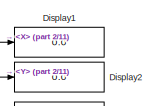
[diagram: root canvas - part 1/11, top left region]
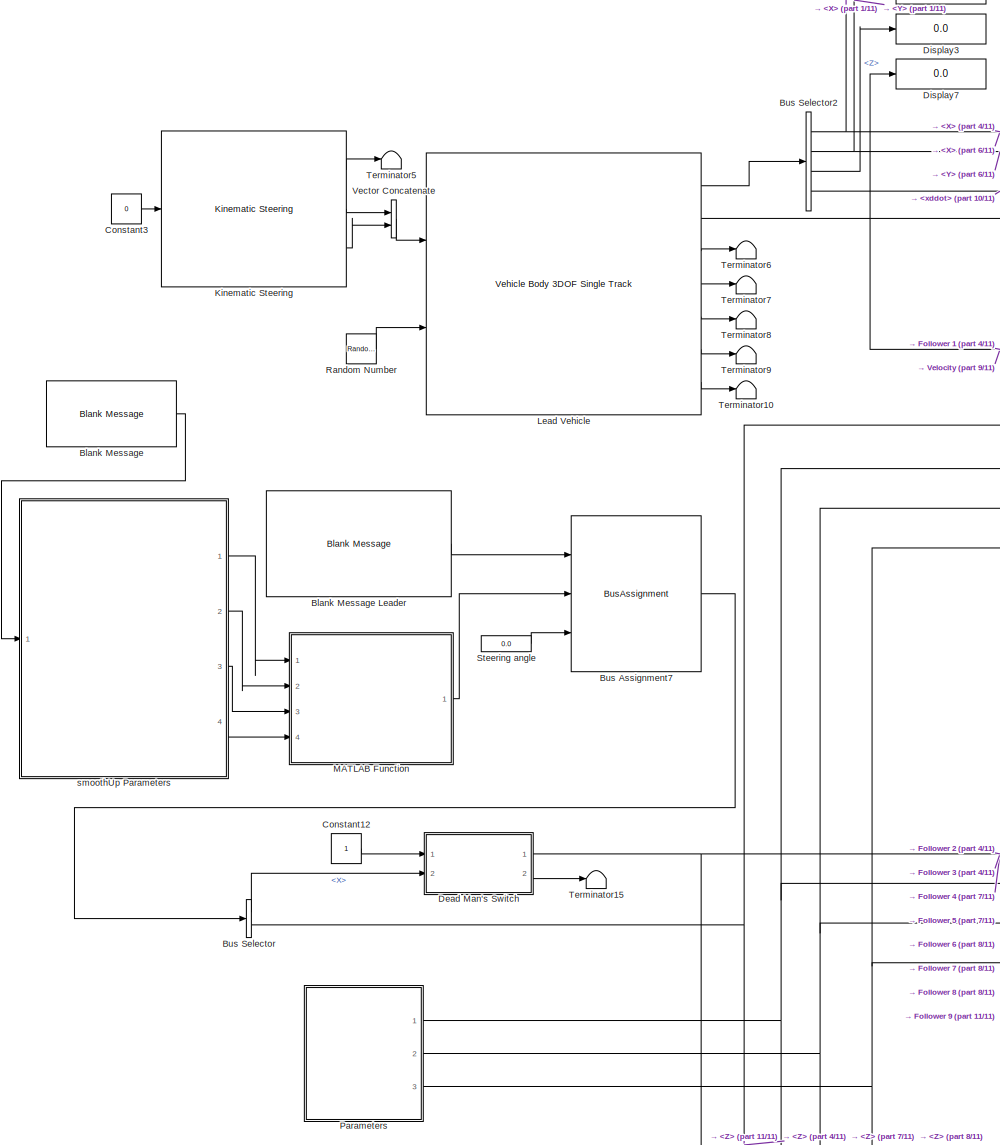
[diagram: root canvas - part 2/11, top left region]
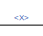
[diagram: root canvas - part 3/11, top center region]
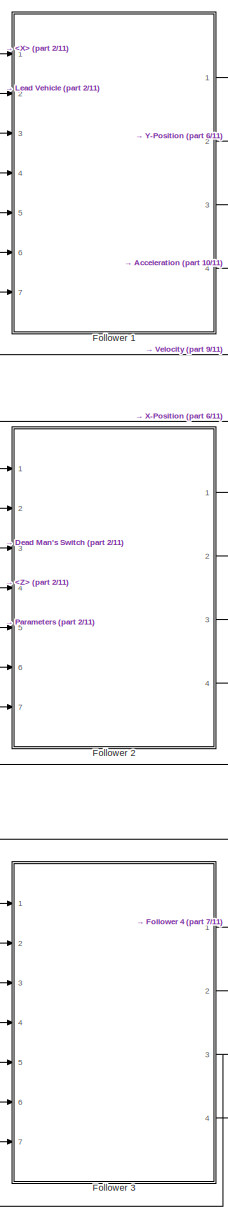
[diagram: root canvas - part 4/11, top center region]
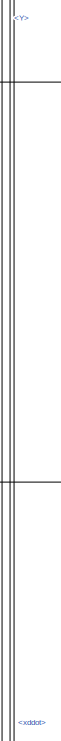
[diagram: root canvas - part 5/11, middle right region]
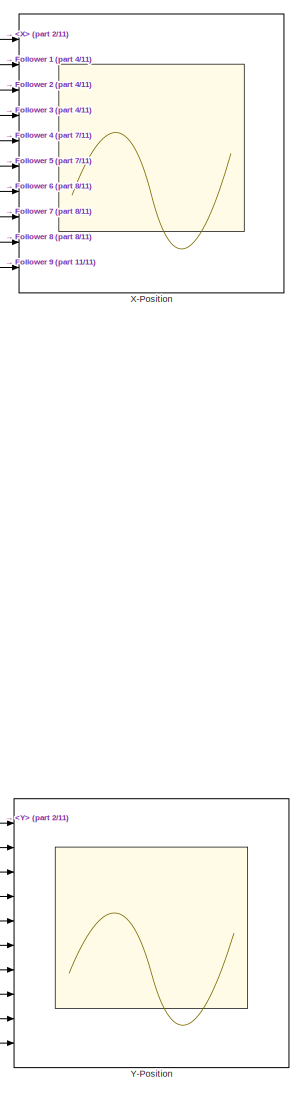
[diagram: root canvas - part 6/11, middle right region]
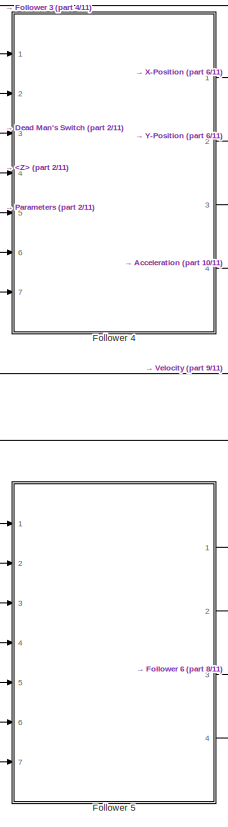
[diagram: root canvas - part 7/11, central region]
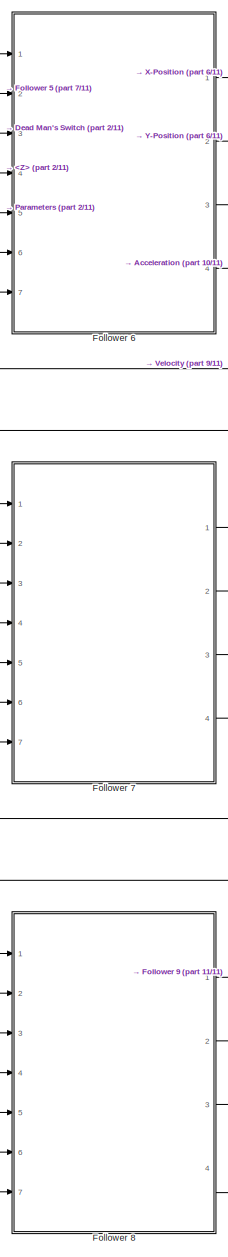
[diagram: root canvas - part 8/11, bottom center region]
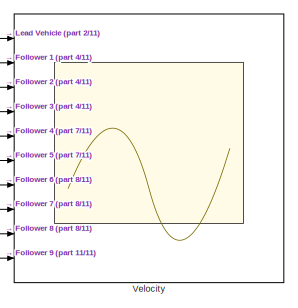
[diagram: root canvas - part 9/11, bottom right region]
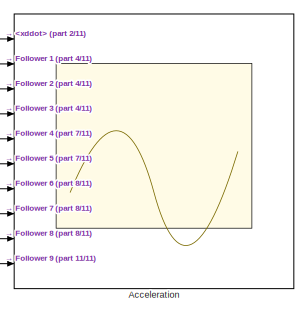
[diagram: root canvas - part 10/11, bottom right region]
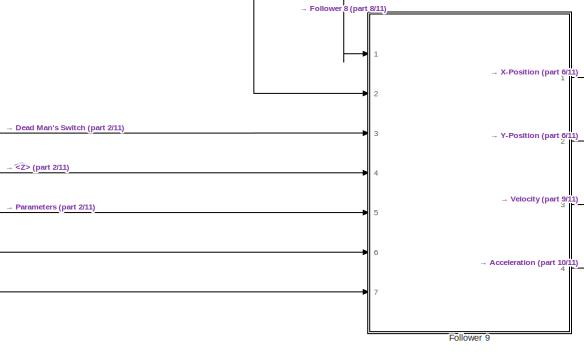
[diagram: root canvas - part 11/11, bottom center region]
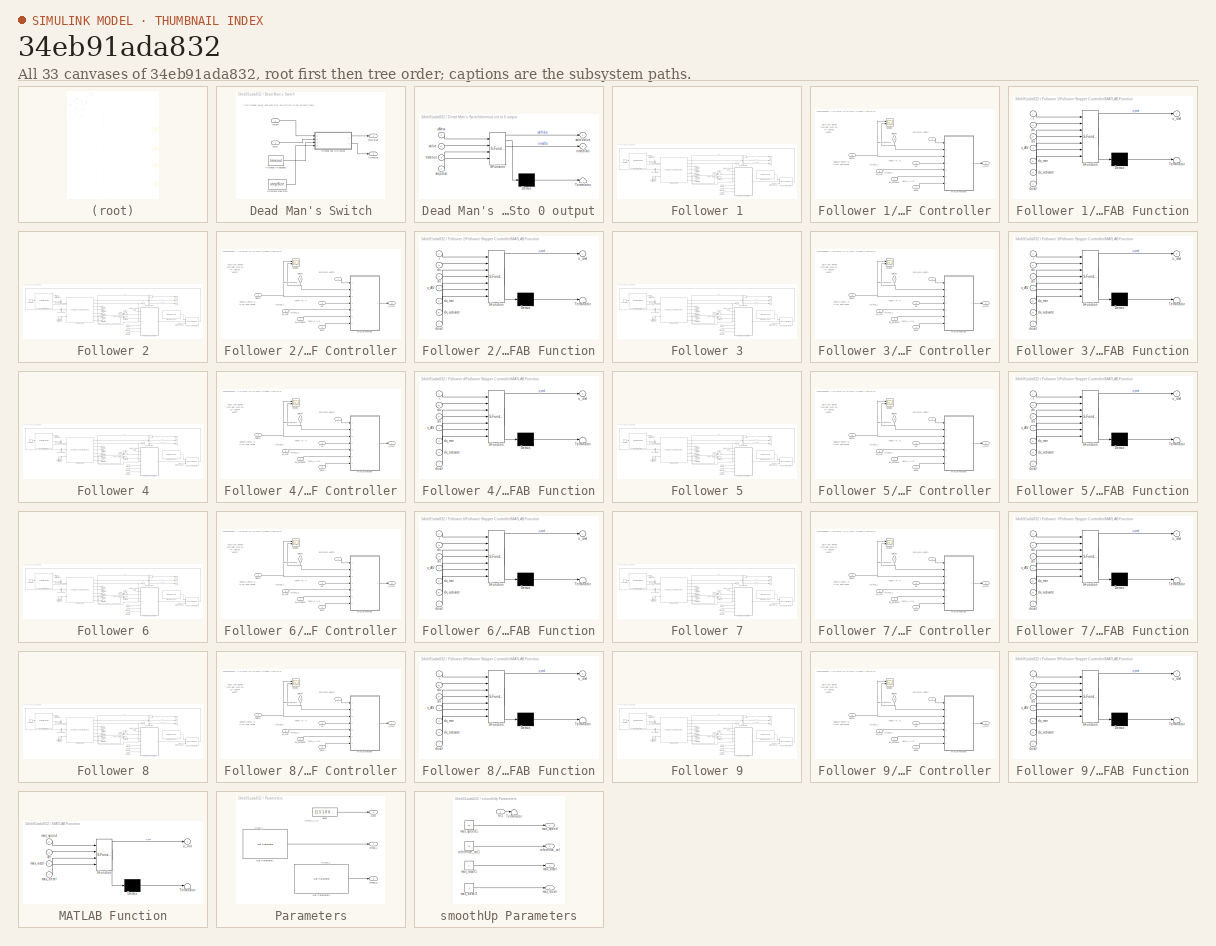
[diagram: thumbnail index - all 33 canvases of the model, root first then tree order]
MODEL slx_34eb91ada832
KIND model
CONFIG AbsTol = auto
CONFIG EnableMultiTasking = off
CONFIG FixedStep = auto
CONFIG MaxStep = auto
CONFIG MinStep = auto
CONFIG RelTol = 1e-3
CONFIG SampleTimeConstraint = Unconstrained
CONFIG Solver = VariableStepAuto
CONFIG SolverName = VariableStepAuto
CONFIG StartTime = 0.0
CONFIG StopTime = inf
BLOCK [Scope] Acceleration
  Floating = off
  NumInputPorts = 10
  Ports = [10]
  ScopeSpecificationString = Simulink.scopes.TimeScopeBlockCfg('CurrentConfiguration', extmgr.ConfigurationSet(extmgr.Configuration('Core','General UI',true),extmgr.Configuration('Core','Source UI',true),extmgr.Configuration('Sources','WiredSimulink',true,'DataLoggingVariableName','ScopeData1','DataLogging',true,'DataLoggingSaveFormat','StructureWithTime'),extmgr.Configuration('Visuals','Time Domain',true,'SerializedDisplays'...<+1630ch>
BLOCK [Reference] Blank Message  REF=robotlib/Blank Message
  Ports = [0, 1]
  SourceBlock = robotlib/Blank Message
  SourceProductBaseCode = RO
  SourceProductName = Robotics System Toolbox
  SourceType = ROS Blank Message
BLOCK [Reference] Blank Message Leader  REF=robotlib/Blank Message
  Ports = [0, 1]
  SourceBlock = robotlib/Blank Message
  SourceProductBaseCode = RO
  SourceProductName = Robotics System Toolbox
  SourceType = ROS Blank Message
BLOCK [BusAssignment] Bus Assignment7
  AssignedSignals = Linear.X,Angular.Z
  Ports = [3, 1]
BLOCK [BusSelector] Bus Selector
  OutputAsBus = off
  OutputSignals = Linear.X,Angular.Z
  Ports = [1, 2]
BLOCK [BusSelector] Bus Selector2
  OutputAsBus = off
  OutputSignals = InertFrm.Geom.Disp.X,InertFrm.Geom.Disp.Y,InertFrm.Geom.Disp.Z,BdyFrm.Cg.Acc.xddot
  Ports = [1, 4]
BLOCK [Constant] Constant12
BLOCK [Constant] Constant3
  Value = 0
BLOCK [SubSystem] Dead Man's Switch
  Ports = [2, 2]
  RequestExecContextInheritance = off
  TreatAsAtomicUnit = on
BLOCK [Inport] Dead Man's Switch/IsNew
  IconDisplay = Port number
BLOCK [Constant] Dead Man's Switch/Simulate step size
  Value = stepSize
BLOCK [Constant] Dead Man's Switch/Timeout in seconds
  Value = timeout
BLOCK [Outport] Dead Man's Switch/safeValue
  IconDisplay = Port number
  InitialOutput = [0]
BLOCK [Outport] Dead Man's Switch/timedOut
  IconDisplay = Port number
  InitialOutput = [0]
  Port = 2
BLOCK [SubSystem] Dead Man's Switch/timeout set to 0 output
  ErrorFcn = Stateflow.Translate.translate
  PermitHierarchicalResolution = ExplicitOnly
  Ports = [4, 2]
  RequestExecContextInheritance = off
  SFBlockType = MATLAB Function
  TreatAsAtomicUnit = on
BLOCK [Demux] Dead Man's Switch/timeout set to 0 output/ Demux 
  Outputs = 1
  Ports = [1, 1]
BLOCK [S-Function] Dead Man's Switch/timeout set to 0 output/ SFunction 
  EnableBusSupport = on
  FunctionName = sf_sfun
  PortCounts = [4 3]
  Ports = [4, 3]
  SFcnIsStateOwnerBlock = off
  SFunctionDeploymentMode = off
  Tag = Stateflow S-Function carPlant_smoothUp_followerStopper_10 1
BLOCK [Terminator] Dead Man's Switch/timeout set to 0 output/ Terminator 
BLOCK [Inport] Dead Man's Switch/timeout set to 0 output/isNew
  IconDisplay = Port number
BLOCK [Outport] Dead Man's Switch/timeout set to 0 output/safeValue
  IconDisplay = Port number
BLOCK [Inport] Dead Man's Switch/timeout set to 0 output/stepSize
  IconDisplay = Port number
  Port = 4
BLOCK [Outport] Dead Man's Switch/timeout set to 0 output/timedOut
  IconDisplay = Port number
  Port = 2
BLOCK [Inport] Dead Man's Switch/timeout set to 0 output/timeout
  IconDisplay = Port number
  Port = 3
BLOCK [Inport] Dead Man's Switch/timeout set to 0 output/value
  IconDisplay = Port number
  Port = 2
BLOCK [Inport] Dead Man's Switch/value
  IconDisplay = Port number
  Port = 2
BLOCK [Display] Display1
  Decimation = 1
  Ports = [1]
BLOCK [Display] Display2
  Decimation = 1
  Ports = [1]
BLOCK [Display] Display3
  Decimation = 1
  Ports = [1]
BLOCK [Display] Display7
  Decimation = 1
  Ports = [1]
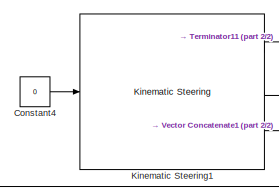
[diagram: Follower 1 - part 1/2, top left region]
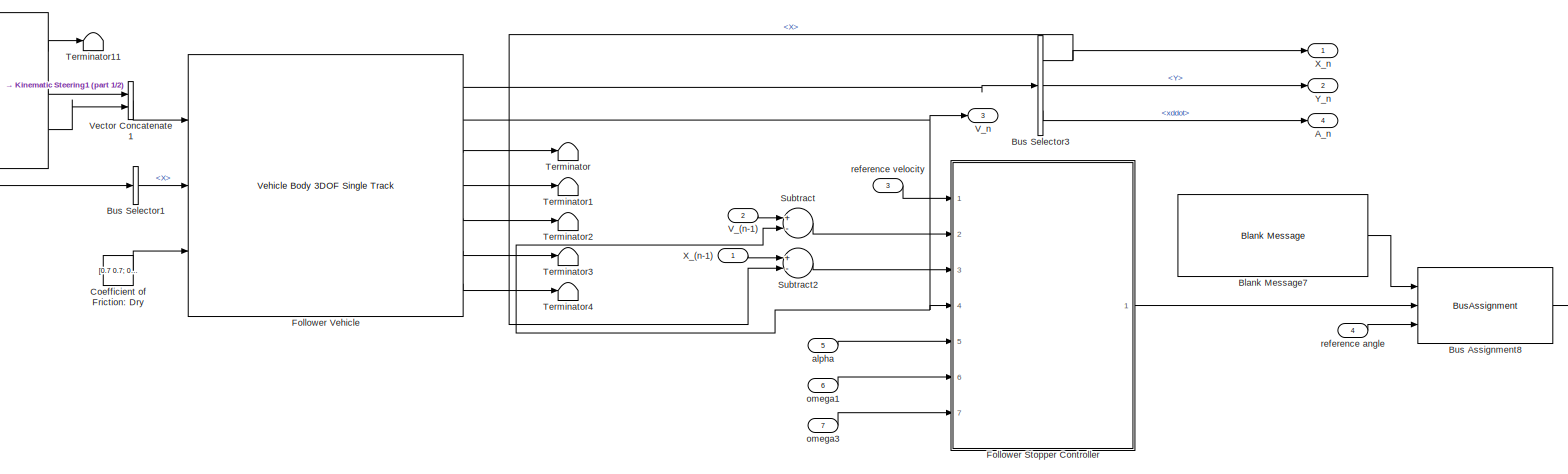
[diagram: Follower 1 - part 2/2, most of the canvas]
BLOCK [SubSystem] Follower 1
  Ports = [7, 4]
  RequestExecContextInheritance = off
BLOCK [Outport] Follower 1/A_n
  IconDisplay = Port number
  Port = 4
BLOCK [Reference] Follower 1/Blank Message7  REF=robotlib/Blank Message
  Ports = [0, 1]
  SourceBlock = robotlib/Blank Message
  SourceProductBaseCode = RO
  SourceProductName = Robotics System Toolbox
  SourceType = ROS Blank Message
BLOCK [BusAssignment] Follower 1/Bus Assignment8
  AssignedSignals = Linear.X,Angular.Z
  Ports = [3, 1]
BLOCK [BusSelector] Follower 1/Bus Selector1
  OutputAsBus = off
  OutputSignals = Linear.X
  Ports = [1, 1]
BLOCK [BusSelector] Follower 1/Bus Selector3
  OutputAsBus = off
  OutputSignals = InertFrm.Geom.Disp.X,InertFrm.Geom.Disp.Y,BdyFrm.Cg.Acc.xddot
  Ports = [1, 3]
BLOCK [Constant] Follower 1/Coefficient of Friction: Dry
  Value = [0.7 0.7; 0.7 0.7]
BLOCK [Constant] Follower 1/Constant4
  Value = 0
BLOCK [SubSystem] Follower 1/Follower Stopper Controller
  Ports = [7, 1]
  RequestExecContextInheritance = off
BLOCK [SubSystem] Follower 1/Follower Stopper Controller/MATLAB Function
  ErrorFcn = Stateflow.Translate.translate
  PermitHierarchicalResolution = ExplicitOnly
  Ports = [7, 1]
  RequestExecContextInheritance = off
  SFBlockType = MATLAB Function
  TreatAsAtomicUnit = on
BLOCK [Demux] Follower 1/Follower Stopper Controller/MATLAB Function/ Demux 
  Outputs = 1
  Ports = [1, 1]
BLOCK [S-Function] Follower 1/Follower Stopper Controller/MATLAB Function/ SFunction 
  EnableBusSupport = on
  FunctionName = sf_sfun
  PortCounts = [7 2]
  Ports = [7, 2]
  SFcnIsStateOwnerBlock = off
  SFunctionDeploymentMode = off
  Tag = Stateflow S-Function carPlant_smoothUp_followerStopper_10 6
BLOCK [Terminator] Follower 1/Follower Stopper Controller/MATLAB Function/ Terminator 
BLOCK [Inport] Follower 1/Follower Stopper Controller/MATLAB Function/decel
  IconDisplay = Port number
  Port = 7
BLOCK [Inport] Follower 1/Follower Stopper Controller/MATLAB Function/dv
  IconDisplay = Port number
  Port = 3
BLOCK [Inport] Follower 1/Follower Stopper Controller/MATLAB Function/dx
  IconDisplay = Port number
  Port = 2
BLOCK [Inport] Follower 1/Follower Stopper Controller/MATLAB Function/dx_activate
  IconDisplay = Port number
  Port = 6
BLOCK [Inport] Follower 1/Follower Stopper Controller/MATLAB Function/dx_min
  IconDisplay = Port number
  Port = 5
BLOCK [Inport] Follower 1/Follower Stopper Controller/MATLAB Function/r
  IconDisplay = Port number
BLOCK [Outport] Follower 1/Follower Stopper Controller/MATLAB Function/u_cmd
  IconDisplay = Port number
BLOCK [Inport] Follower 1/Follower Stopper Controller/MATLAB Function/v_AV
  IconDisplay = Port number
  Port = 4
BLOCK [Scope] Follower 1/Follower Stopper Controller/Scope1
  Floating = off
  NumInputPorts = 2
  Ports = [2]
  ScopeSpecificationString = Simulink.scopes.TimeScopeBlockCfg('CurrentConfiguration', extmgr.ConfigurationSet(extmgr.Configuration('Core','General UI',true),extmgr.Configuration('Core','Source UI',true),extmgr.Configuration('Sources','WiredSimulink',true,'DataLoggingVariableName','ScopeData1'),extmgr.Configuration('Visuals','Time Domain',true),extmgr.Configuration('Tools','Plot Navigation',true),extmgr.Configuration('Tools',...<+40ch>  <repeated x9 — deduplicated; at blocks: Scope1>
BLOCK [Inport] Follower 1/Follower Stopper Controller/decel
  IconDisplay = Port number
  Port = 5
BLOCK [Inport] Follower 1/Follower Stopper Controller/deltaV
  IconDisplay = Port number
  Port = 2
BLOCK [Inport] Follower 1/Follower Stopper Controller/deltaX
  IconDisplay = Port number
  Port = 3
BLOCK [Inport] Follower 1/Follower Stopper Controller/dx_activate
  IconDisplay = Port number
  Port = 7
BLOCK [Inport] Follower 1/Follower Stopper Controller/dx_min
  IconDisplay = Port number
  Port = 6
BLOCK [Inport] Follower 1/Follower Stopper Controller/r
  IconDisplay = Port number
BLOCK [Outport] Follower 1/Follower Stopper Controller/u_cmd
  IconDisplay = Port number
BLOCK [Inport] Follower 1/Follower Stopper Controller/vel
  IconDisplay = Port number
  Port = 4
BLOCK [Reference] Follower 1/Follower Vehicle  REF=autolibshared/Vehicle Body 3DOF Single Track
  Ports = [3, 7]
  SourceBlock = autolibshared/Vehicle Body 3DOF Single Track
  SourceProductBaseCode = PW
  SourceProductName = Powertrain Blockset
  SourceType = Vehicle Body 3DOF Lateral
BLOCK [Reference] Follower 1/Kinematic Steering1  REF=vehdynlibsteering/Kinematic Steering
  Ports = [1, 3]
  SourceBlock = vehdynlibsteering/Kinematic Steering
  SourceProductBaseCode = VE
  SourceProductName = Vehicle Dynamics Blockset
  SourceType = Kinematic Steering
BLOCK [Sum] Follower 1/Subtract
  InputSameDT = off
  Inputs = +-
  OutDataTypeStr = Inherit: Inherit via internal rule
  Ports = [2, 1]
  SaturateOnIntegerOverflow = off
BLOCK [Sum] Follower 1/Subtract2
  InputSameDT = off
  Inputs = +-
  OutDataTypeStr = Inherit: Inherit via internal rule
  Ports = [2, 1]
  SaturateOnIntegerOverflow = off
BLOCK [Terminator] Follower 1/Terminator
BLOCK [Terminator] Follower 1/Terminator1
BLOCK [Terminator] Follower 1/Terminator11
BLOCK [Terminator] Follower 1/Terminator2
BLOCK [Terminator] Follower 1/Terminator3
BLOCK [Terminator] Follower 1/Terminator4
BLOCK [Inport] Follower 1/V_(n-1)
  IconDisplay = Port number
  Port = 2
BLOCK [Outport] Follower 1/V_n
  IconDisplay = Port number
  Port = 3
BLOCK [Concatenate] Follower 1/Vector Concatenate1
  Ports = [2, 1]
BLOCK [Inport] Follower 1/X_(n-1)
  IconDisplay = Port number
BLOCK [Outport] Follower 1/X_n
  IconDisplay = Port number
BLOCK [Outport] Follower 1/Y_n
  IconDisplay = Port number
  Port = 2
BLOCK [Inport] Follower 1/alpha
  IconDisplay = Port number
  Port = 5
BLOCK [Inport] Follower 1/omega1
  IconDisplay = Port number
  Port = 6
BLOCK [Inport] Follower 1/omega3
  IconDisplay = Port number
  Port = 7
BLOCK [Inport] Follower 1/reference angle
  IconDisplay = Port number
  Port = 4
BLOCK [Inport] Follower 1/reference velocity
  IconDisplay = Port number
  Port = 3
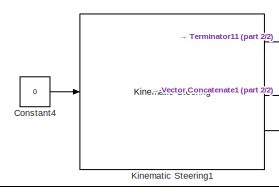
[diagram: Follower 2 - part 1/2, top left region]
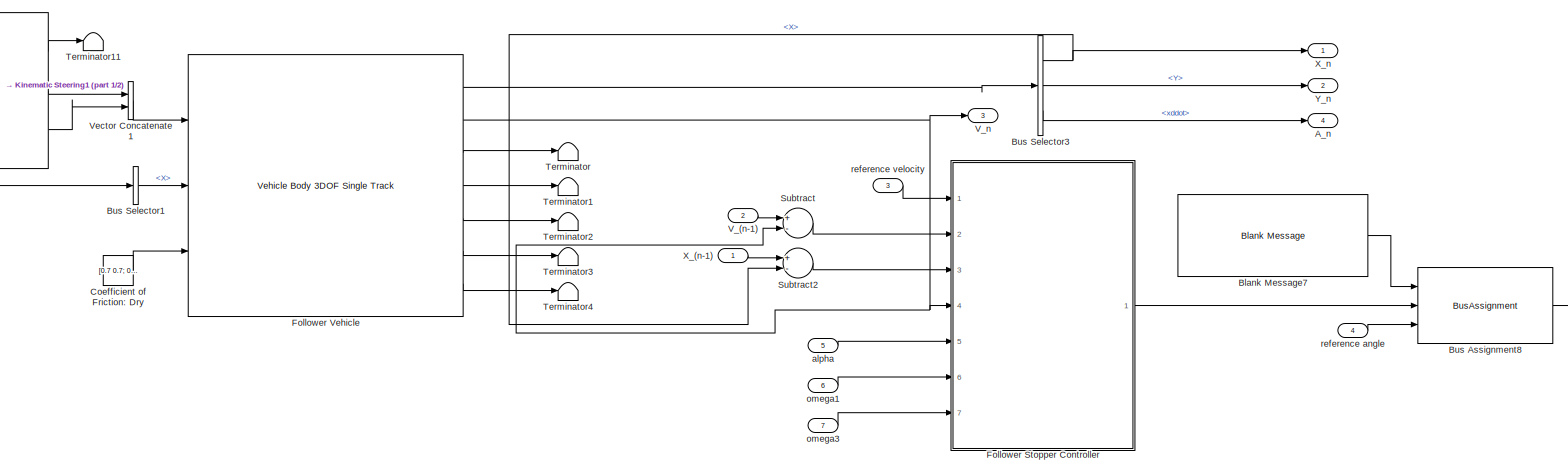
[diagram: Follower 2 - part 2/2, most of the canvas]
BLOCK [SubSystem] Follower 2
  Ports = [7, 4]
  RequestExecContextInheritance = off
BLOCK [Outport] Follower 2/A_n
  IconDisplay = Port number
  Port = 4
BLOCK [Reference] Follower 2/Blank Message7  REF=robotlib/Blank Message
  Ports = [0, 1]
  SourceBlock = robotlib/Blank Message
  SourceProductBaseCode = RO
  SourceProductName = Robotics System Toolbox
  SourceType = ROS Blank Message
BLOCK [BusAssignment] Follower 2/Bus Assignment8
  AssignedSignals = Linear.X,Angular.Z
  Ports = [3, 1]
BLOCK [BusSelector] Follower 2/Bus Selector1
  OutputAsBus = off
  OutputSignals = Linear.X
  Ports = [1, 1]
BLOCK [BusSelector] Follower 2/Bus Selector3
  OutputAsBus = off
  OutputSignals = InertFrm.Geom.Disp.X,InertFrm.Geom.Disp.Y,BdyFrm.Cg.Acc.xddot
  Ports = [1, 3]
BLOCK [Constant] Follower 2/Coefficient of Friction: Dry
  Value = [0.7 0.7; 0.7 0.7]
BLOCK [Constant] Follower 2/Constant4
  Value = 0
BLOCK [SubSystem] Follower 2/Follower Stopper Controller
  Ports = [7, 1]
  RequestExecContextInheritance = off
BLOCK [SubSystem] Follower 2/Follower Stopper Controller/MATLAB Function
  ErrorFcn = Stateflow.Translate.translate
  PermitHierarchicalResolution = ExplicitOnly
  Ports = [7, 1]
  RequestExecContextInheritance = off
  SFBlockType = MATLAB Function
  TreatAsAtomicUnit = on
BLOCK [Demux] Follower 2/Follower Stopper Controller/MATLAB Function/ Demux 
  Outputs = 1
  Ports = [1, 1]
BLOCK [S-Function] Follower 2/Follower Stopper Controller/MATLAB Function/ SFunction 
  EnableBusSupport = on
  FunctionName = sf_sfun
  PortCounts = [7 2]
  Ports = [7, 2]
  SFcnIsStateOwnerBlock = off
  SFunctionDeploymentMode = off
  Tag = Stateflow S-Function carPlant_smoothUp_followerStopper_10 3
BLOCK [Terminator] Follower 2/Follower Stopper Controller/MATLAB Function/ Terminator 
BLOCK [Inport] Follower 2/Follower Stopper Controller/MATLAB Function/decel
  IconDisplay = Port number
  Port = 7
BLOCK [Inport] Follower 2/Follower Stopper Controller/MATLAB Function/dv
  IconDisplay = Port number
  Port = 3
BLOCK [Inport] Follower 2/Follower Stopper Controller/MATLAB Function/dx
  IconDisplay = Port number
  Port = 2
BLOCK [Inport] Follower 2/Follower Stopper Controller/MATLAB Function/dx_activate
  IconDisplay = Port number
  Port = 6
BLOCK [Inport] Follower 2/Follower Stopper Controller/MATLAB Function/dx_min
  IconDisplay = Port number
  Port = 5
BLOCK [Inport] Follower 2/Follower Stopper Controller/MATLAB Function/r
  IconDisplay = Port number
BLOCK [Outport] Follower 2/Follower Stopper Controller/MATLAB Function/u_cmd
  IconDisplay = Port number
BLOCK [Inport] Follower 2/Follower Stopper Controller/MATLAB Function/v_AV
  IconDisplay = Port number
  Port = 4
BLOCK [Scope] Follower 2/Follower Stopper Controller/Scope1
  Floating = off
  NumInputPorts = 2
  Ports = [2]
BLOCK [Inport] Follower 2/Follower Stopper Controller/decel
  IconDisplay = Port number
  Port = 5
BLOCK [Inport] Follower 2/Follower Stopper Controller/deltaV
  IconDisplay = Port number
  Port = 2
BLOCK [Inport] Follower 2/Follower Stopper Controller/deltaX
  IconDisplay = Port number
  Port = 3
BLOCK [Inport] Follower 2/Follower Stopper Controller/dx_activate
  IconDisplay = Port number
  Port = 7
BLOCK [Inport] Follower 2/Follower Stopper Controller/dx_min
  IconDisplay = Port number
  Port = 6
BLOCK [Inport] Follower 2/Follower Stopper Controller/r
  IconDisplay = Port number
BLOCK [Outport] Follower 2/Follower Stopper Controller/u_cmd
  IconDisplay = Port number
BLOCK [Inport] Follower 2/Follower Stopper Controller/vel
  IconDisplay = Port number
  Port = 4
BLOCK [Reference] Follower 2/Follower Vehicle  REF=autolibshared/Vehicle Body 3DOF Single Track
  Ports = [3, 7]
  SourceBlock = autolibshared/Vehicle Body 3DOF Single Track
  SourceProductBaseCode = PW
  SourceProductName = Powertrain Blockset
  SourceType = Vehicle Body 3DOF Lateral
BLOCK [Reference] Follower 2/Kinematic Steering1  REF=vehdynlibsteering/Kinematic Steering
  Ports = [1, 3]
  SourceBlock = vehdynlibsteering/Kinematic Steering
  SourceProductBaseCode = VE
  SourceProductName = Vehicle Dynamics Blockset
  SourceType = Kinematic Steering
BLOCK [Sum] Follower 2/Subtract
  InputSameDT = off
  Inputs = +-
  OutDataTypeStr = Inherit: Inherit via internal rule
  Ports = [2, 1]
  SaturateOnIntegerOverflow = off
BLOCK [Sum] Follower 2/Subtract2
  InputSameDT = off
  Inputs = +-
  OutDataTypeStr = Inherit: Inherit via internal rule
  Ports = [2, 1]
  SaturateOnIntegerOverflow = off
BLOCK [Terminator] Follower 2/Terminator
BLOCK [Terminator] Follower 2/Terminator1
BLOCK [Terminator] Follower 2/Terminator11
BLOCK [Terminator] Follower 2/Terminator2
BLOCK [Terminator] Follower 2/Terminator3
BLOCK [Terminator] Follower 2/Terminator4
BLOCK [Inport] Follower 2/V_(n-1)
  IconDisplay = Port number
  Port = 2
BLOCK [Outport] Follower 2/V_n
  IconDisplay = Port number
  Port = 3
BLOCK [Concatenate] Follower 2/Vector Concatenate1
  Ports = [2, 1]
BLOCK [Inport] Follower 2/X_(n-1)
  IconDisplay = Port number
BLOCK [Outport] Follower 2/X_n
  IconDisplay = Port number
BLOCK [Outport] Follower 2/Y_n
  IconDisplay = Port number
  Port = 2
BLOCK [Inport] Follower 2/alpha
  IconDisplay = Port number
  Port = 5
BLOCK [Inport] Follower 2/omega1
  IconDisplay = Port number
  Port = 6
BLOCK [Inport] Follower 2/omega3
  IconDisplay = Port number
  Port = 7
BLOCK [Inport] Follower 2/reference angle
  IconDisplay = Port number
  Port = 4
BLOCK [Inport] Follower 2/reference velocity
  IconDisplay = Port number
  Port = 3
BLOCK [SubSystem] Follower 3
  Ports = [7, 4]
  RequestExecContextInheritance = off
BLOCK [Outport] Follower 3/A_n
  IconDisplay = Port number
  Port = 4
BLOCK [Reference] Follower 3/Blank Message7  REF=robotlib/Blank Message
  Ports = [0, 1]
  SourceBlock = robotlib/Blank Message
  SourceProductBaseCode = RO
  SourceProductName = Robotics System Toolbox
  SourceType = ROS Blank Message
BLOCK [BusAssignment] Follower 3/Bus Assignment8
  AssignedSignals = Linear.X,Angular.Z
  Ports = [3, 1]
BLOCK [BusSelector] Follower 3/Bus Selector1
  OutputAsBus = off
  OutputSignals = Linear.X
  Ports = [1, 1]
BLOCK [BusSelector] Follower 3/Bus Selector3
  OutputAsBus = off
  OutputSignals = InertFrm.Geom.Disp.X,InertFrm.Geom.Disp.Y,BdyFrm.Cg.Acc.xddot
  Ports = [1, 3]
BLOCK [Constant] Follower 3/Coefficient of Friction: Dry
  Value = [0.7 0.7; 0.7 0.7]
BLOCK [Constant] Follower 3/Constant4
  Value = 0
BLOCK [SubSystem] Follower 3/Follower Stopper Controller
  Ports = [7, 1]
  RequestExecContextInheritance = off
BLOCK [SubSystem] Follower 3/Follower Stopper Controller/MATLAB Function
  ErrorFcn = Stateflow.Translate.translate
  PermitHierarchicalResolution = ExplicitOnly
  Ports = [7, 1]
  RequestExecContextInheritance = off
  SFBlockType = MATLAB Function
  TreatAsAtomicUnit = on
BLOCK [Demux] Follower 3/Follower Stopper Controller/MATLAB Function/ Demux 
  Outputs = 1
  Ports = [1, 1]
BLOCK [S-Function] Follower 3/Follower Stopper Controller/MATLAB Function/ SFunction 
  EnableBusSupport = on
  FunctionName = sf_sfun
  PortCounts = [7 2]
  Ports = [7, 2]
  SFcnIsStateOwnerBlock = off
  SFunctionDeploymentMode = off
  Tag = Stateflow S-Function carPlant_smoothUp_followerStopper_10 4
BLOCK [Terminator] Follower 3/Follower Stopper Controller/MATLAB Function/ Terminator 
BLOCK [Inport] Follower 3/Follower Stopper Controller/MATLAB Function/decel
  IconDisplay = Port number
  Port = 7
BLOCK [Inport] Follower 3/Follower Stopper Controller/MATLAB Function/dv
  IconDisplay = Port number
  Port = 3
BLOCK [Inport] Follower 3/Follower Stopper Controller/MATLAB Function/dx
  IconDisplay = Port number
  Port = 2
BLOCK [Inport] Follower 3/Follower Stopper Controller/MATLAB Function/dx_activate
  IconDisplay = Port number
  Port = 6
BLOCK [Inport] Follower 3/Follower Stopper Controller/MATLAB Function/dx_min
  IconDisplay = Port number
  Port = 5
BLOCK [Inport] Follower 3/Follower Stopper Controller/MATLAB Function/r
  IconDisplay = Port number
BLOCK [Outport] Follower 3/Follower Stopper Controller/MATLAB Function/u_cmd
  IconDisplay = Port number
BLOCK [Inport] Follower 3/Follower Stopper Controller/MATLAB Function/v_AV
  IconDisplay = Port number
  Port = 4
BLOCK [Scope] Follower 3/Follower Stopper Controller/Scope1
  Floating = off
  NumInputPorts = 2
  Ports = [2]
BLOCK [Inport] Follower 3/Follower Stopper Controller/decel
  IconDisplay = Port number
  Port = 5
BLOCK [Inport] Follower 3/Follower Stopper Controller/deltaV
  IconDisplay = Port number
  Port = 2
BLOCK [Inport] Follower 3/Follower Stopper Controller/deltaX
  IconDisplay = Port number
  Port = 3
BLOCK [Inport] Follower 3/Follower Stopper Controller/dx_activate
  IconDisplay = Port number
  Port = 7
BLOCK [Inport] Follower 3/Follower Stopper Controller/dx_min
  IconDisplay = Port number
  Port = 6
BLOCK [Inport] Follower 3/Follower Stopper Controller/r
  IconDisplay = Port number
BLOCK [Outport] Follower 3/Follower Stopper Controller/u_cmd
  IconDisplay = Port number
BLOCK [Inport] Follower 3/Follower Stopper Controller/vel
  IconDisplay = Port number
  Port = 4
BLOCK [Reference] Follower 3/Follower Vehicle  REF=autolibshared/Vehicle Body 3DOF Single Track
  Ports = [3, 7]
  SourceBlock = autolibshared/Vehicle Body 3DOF Single Track
  SourceProductBaseCode = PW
  SourceProductName = Powertrain Blockset
  SourceType = Vehicle Body 3DOF Lateral
BLOCK [Reference] Follower 3/Kinematic Steering1  REF=vehdynlibsteering/Kinematic Steering
  Ports = [1, 3]
  SourceBlock = vehdynlibsteering/Kinematic Steering
  SourceProductBaseCode = VE
  SourceProductName = Vehicle Dynamics Blockset
  SourceType = Kinematic Steering
BLOCK [Sum] Follower 3/Subtract
  InputSameDT = off
  Inputs = +-
  OutDataTypeStr = Inherit: Inherit via internal rule
  Ports = [2, 1]
  SaturateOnIntegerOverflow = off
BLOCK [Sum] Follower 3/Subtract2
  InputSameDT = off
  Inputs = +-
  OutDataTypeStr = Inherit: Inherit via internal rule
  Ports = [2, 1]
  SaturateOnIntegerOverflow = off
BLOCK [Terminator] Follower 3/Terminator
BLOCK [Terminator] Follower 3/Terminator1
BLOCK [Terminator] Follower 3/Terminator11
BLOCK [Terminator] Follower 3/Terminator2
BLOCK [Terminator] Follower 3/Terminator3
BLOCK [Terminator] Follower 3/Terminator4
BLOCK [Inport] Follower 3/V_(n-1)
  IconDisplay = Port number
  Port = 2
BLOCK [Outport] Follower 3/V_n
  IconDisplay = Port number
  Port = 3
BLOCK [Concatenate] Follower 3/Vector Concatenate1
  Ports = [2, 1]
BLOCK [Inport] Follower 3/X_(n-1)
  IconDisplay = Port number
BLOCK [Outport] Follower 3/X_n
  IconDisplay = Port number
BLOCK [Outport] Follower 3/Y_n
  IconDisplay = Port number
  Port = 2
BLOCK [Inport] Follower 3/alpha
  IconDisplay = Port number
  Port = 5
BLOCK [Inport] Follower 3/omega1
  IconDisplay = Port number
  Port = 6
BLOCK [Inport] Follower 3/omega3
  IconDisplay = Port number
  Port = 7
BLOCK [Inport] Follower 3/reference angle
  IconDisplay = Port number
  Port = 4
BLOCK [Inport] Follower 3/reference velocity
  IconDisplay = Port number
  Port = 3
BLOCK [SubSystem] Follower 4
  Ports = [7, 4]
  RequestExecContextInheritance = off
BLOCK [Outport] Follower 4/A_n
  IconDisplay = Port number
  Port = 4
BLOCK [Reference] Follower 4/Blank Message7  REF=robotlib/Blank Message
  Ports = [0, 1]
  SourceBlock = robotlib/Blank Message
  SourceProductBaseCode = RO
  SourceProductName = Robotics System Toolbox
  SourceType = ROS Blank Message
BLOCK [BusAssignment] Follower 4/Bus Assignment8
  AssignedSignals = Linear.X,Angular.Z
  Ports = [3, 1]
BLOCK [BusSelector] Follower 4/Bus Selector1
  OutputAsBus = off
  OutputSignals = Linear.X
  Ports = [1, 1]
BLOCK [BusSelector] Follower 4/Bus Selector3
  OutputAsBus = off
  OutputSignals = InertFrm.Geom.Disp.X,InertFrm.Geom.Disp.Y,BdyFrm.Cg.Acc.xddot
  Ports = [1, 3]
BLOCK [Constant] Follower 4/Coefficient of Friction: Dry
  Value = [0.7 0.7; 0.7 0.7]
BLOCK [Constant] Follower 4/Constant4
  Value = 0
BLOCK [SubSystem] Follower 4/Follower Stopper Controller
  Ports = [7, 1]
  RequestExecContextInheritance = off
BLOCK [SubSystem] Follower 4/Follower Stopper Controller/MATLAB Function
  ErrorFcn = Stateflow.Translate.translate
  PermitHierarchicalResolution = ExplicitOnly
  Ports = [7, 1]
  RequestExecContextInheritance = off
  SFBlockType = MATLAB Function
  TreatAsAtomicUnit = on
BLOCK [Demux] Follower 4/Follower Stopper Controller/MATLAB Function/ Demux 
  Outputs = 1
  Ports = [1, 1]
BLOCK [S-Function] Follower 4/Follower Stopper Controller/MATLAB Function/ SFunction 
  EnableBusSupport = on
  FunctionName = sf_sfun
  PortCounts = [7 2]
  Ports = [7, 2]
  SFcnIsStateOwnerBlock = off
  SFunctionDeploymentMode = off
  Tag = Stateflow S-Function carPlant_smoothUp_followerStopper_10 5
BLOCK [Terminator] Follower 4/Follower Stopper Controller/MATLAB Function/ Terminator 
BLOCK [Inport] Follower 4/Follower Stopper Controller/MATLAB Function/decel
  IconDisplay = Port number
  Port = 7
BLOCK [Inport] Follower 4/Follower Stopper Controller/MATLAB Function/dv
  IconDisplay = Port number
  Port = 3
BLOCK [Inport] Follower 4/Follower Stopper Controller/MATLAB Function/dx
  IconDisplay = Port number
  Port = 2
BLOCK [Inport] Follower 4/Follower Stopper Controller/MATLAB Function/dx_activate
  IconDisplay = Port number
  Port = 6
BLOCK [Inport] Follower 4/Follower Stopper Controller/MATLAB Function/dx_min
  IconDisplay = Port number
  Port = 5
BLOCK [Inport] Follower 4/Follower Stopper Controller/MATLAB Function/r
  IconDisplay = Port number
BLOCK [Outport] Follower 4/Follower Stopper Controller/MATLAB Function/u_cmd
  IconDisplay = Port number
BLOCK [Inport] Follower 4/Follower Stopper Controller/MATLAB Function/v_AV
  IconDisplay = Port number
  Port = 4
BLOCK [Scope] Follower 4/Follower Stopper Controller/Scope1
  Floating = off
  NumInputPorts = 2
  Ports = [2]
BLOCK [Inport] Follower 4/Follower Stopper Controller/decel
  IconDisplay = Port number
  Port = 5
BLOCK [Inport] Follower 4/Follower Stopper Controller/deltaV
  IconDisplay = Port number
  Port = 2
BLOCK [Inport] Follower 4/Follower Stopper Controller/deltaX
  IconDisplay = Port number
  Port = 3
BLOCK [Inport] Follower 4/Follower Stopper Controller/dx_activate
  IconDisplay = Port number
  Port = 7
BLOCK [Inport] Follower 4/Follower Stopper Controller/dx_min
  IconDisplay = Port number
  Port = 6
BLOCK [Inport] Follower 4/Follower Stopper Controller/r
  IconDisplay = Port number
BLOCK [Outport] Follower 4/Follower Stopper Controller/u_cmd
  IconDisplay = Port number
BLOCK [Inport] Follower 4/Follower Stopper Controller/vel
  IconDisplay = Port number
  Port = 4
BLOCK [Reference] Follower 4/Follower Vehicle  REF=autolibshared/Vehicle Body 3DOF Single Track
  Ports = [3, 7]
  SourceBlock = autolibshared/Vehicle Body 3DOF Single Track
  SourceProductBaseCode = PW
  SourceProductName = Powertrain Blockset
  SourceType = Vehicle Body 3DOF Lateral
BLOCK [Reference] Follower 4/Kinematic Steering1  REF=vehdynlibsteering/Kinematic Steering
  Ports = [1, 3]
  SourceBlock = vehdynlibsteering/Kinematic Steering
  SourceProductBaseCode = VE
  SourceProductName = Vehicle Dynamics Blockset
  SourceType = Kinematic Steering
BLOCK [Sum] Follower 4/Subtract
  InputSameDT = off
  Inputs = +-
  OutDataTypeStr = Inherit: Inherit via internal rule
  Ports = [2, 1]
  SaturateOnIntegerOverflow = off
BLOCK [Sum] Follower 4/Subtract2
  InputSameDT = off
  Inputs = +-
  OutDataTypeStr = Inherit: Inherit via internal rule
  Ports = [2, 1]
  SaturateOnIntegerOverflow = off
BLOCK [Terminator] Follower 4/Terminator
BLOCK [Terminator] Follower 4/Terminator1
BLOCK [Terminator] Follower 4/Terminator11
BLOCK [Terminator] Follower 4/Terminator2
BLOCK [Terminator] Follower 4/Terminator3
BLOCK [Terminator] Follower 4/Terminator4
BLOCK [Inport] Follower 4/V_(n-1)
  IconDisplay = Port number
  Port = 2
BLOCK [Outport] Follower 4/V_n
  IconDisplay = Port number
  Port = 3
BLOCK [Concatenate] Follower 4/Vector Concatenate1
  Ports = [2, 1]
BLOCK [Inport] Follower 4/X_(n-1)
  IconDisplay = Port number
BLOCK [Outport] Follower 4/X_n
  IconDisplay = Port number
BLOCK [Outport] Follower 4/Y_n
  IconDisplay = Port number
  Port = 2
BLOCK [Inport] Follower 4/alpha
  IconDisplay = Port number
  Port = 5
BLOCK [Inport] Follower 4/omega1
  IconDisplay = Port number
  Port = 6
BLOCK [Inport] Follower 4/omega3
  IconDisplay = Port number
  Port = 7
BLOCK [Inport] Follower 4/reference angle
  IconDisplay = Port number
  Port = 4
BLOCK [Inport] Follower 4/reference velocity
  IconDisplay = Port number
  Port = 3
BLOCK [SubSystem] Follower 5
  Ports = [7, 4]
  RequestExecContextInheritance = off
BLOCK [Outport] Follower 5/A_n
  IconDisplay = Port number
  Port = 4
BLOCK [Reference] Follower 5/Blank Message7  REF=robotlib/Blank Message
  Ports = [0, 1]
  SourceBlock = robotlib/Blank Message
  SourceProductBaseCode = RO
  SourceProductName = Robotics System Toolbox
  SourceType = ROS Blank Message
BLOCK [BusAssignment] Follower 5/Bus Assignment8
  AssignedSignals = Linear.X,Angular.Z
  Ports = [3, 1]
BLOCK [BusSelector] Follower 5/Bus Selector1
  OutputAsBus = off
  OutputSignals = Linear.X
  Ports = [1, 1]
BLOCK [BusSelector] Follower 5/Bus Selector3
  OutputAsBus = off
  OutputSignals = InertFrm.Geom.Disp.X,InertFrm.Geom.Disp.Y,BdyFrm.Cg.Acc.xddot
  Ports = [1, 3]
BLOCK [Constant] Follower 5/Coefficient of Friction: Dry
  Value = [0.7 0.7; 0.7 0.7]
BLOCK [Constant] Follower 5/Constant4
  Value = 0
BLOCK [SubSystem] Follower 5/Follower Stopper Controller
  Ports = [7, 1]
  RequestExecContextInheritance = off
BLOCK [SubSystem] Follower 5/Follower Stopper Controller/MATLAB Function
  ErrorFcn = Stateflow.Translate.translate
  PermitHierarchicalResolution = ExplicitOnly
  Ports = [7, 1]
  RequestExecContextInheritance = off
  SFBlockType = MATLAB Function
  TreatAsAtomicUnit = on
BLOCK [Demux] Follower 5/Follower Stopper Controller/MATLAB Function/ Demux 
  Outputs = 1
  Ports = [1, 1]
BLOCK [S-Function] Follower 5/Follower Stopper Controller/MATLAB Function/ SFunction 
  EnableBusSupport = on
  FunctionName = sf_sfun
  PortCounts = [7 2]
  Ports = [7, 2]
  SFcnIsStateOwnerBlock = off
  SFunctionDeploymentMode = off
  Tag = Stateflow S-Function carPlant_smoothUp_followerStopper_10 7
BLOCK [Terminator] Follower 5/Follower Stopper Controller/MATLAB Function/ Terminator 
BLOCK [Inport] Follower 5/Follower Stopper Controller/MATLAB Function/decel
  IconDisplay = Port number
  Port = 7
BLOCK [Inport] Follower 5/Follower Stopper Controller/MATLAB Function/dv
  IconDisplay = Port number
  Port = 3
BLOCK [Inport] Follower 5/Follower Stopper Controller/MATLAB Function/dx
  IconDisplay = Port number
  Port = 2
BLOCK [Inport] Follower 5/Follower Stopper Controller/MATLAB Function/dx_activate
  IconDisplay = Port number
  Port = 6
BLOCK [Inport] Follower 5/Follower Stopper Controller/MATLAB Function/dx_min
  IconDisplay = Port number
  Port = 5
BLOCK [Inport] Follower 5/Follower Stopper Controller/MATLAB Function/r
  IconDisplay = Port number
BLOCK [Outport] Follower 5/Follower Stopper Controller/MATLAB Function/u_cmd
  IconDisplay = Port number
BLOCK [Inport] Follower 5/Follower Stopper Controller/MATLAB Function/v_AV
  IconDisplay = Port number
  Port = 4
BLOCK [Scope] Follower 5/Follower Stopper Controller/Scope1
  Floating = off
  NumInputPorts = 2
  Ports = [2]
BLOCK [Inport] Follower 5/Follower Stopper Controller/decel
  IconDisplay = Port number
  Port = 5
BLOCK [Inport] Follower 5/Follower Stopper Controller/deltaV
  IconDisplay = Port number
  Port = 2
BLOCK [Inport] Follower 5/Follower Stopper Controller/deltaX
  IconDisplay = Port number
  Port = 3
BLOCK [Inport] Follower 5/Follower Stopper Controller/dx_activate
  IconDisplay = Port number
  Port = 7
BLOCK [Inport] Follower 5/Follower Stopper Controller/dx_min
  IconDisplay = Port number
  Port = 6
BLOCK [Inport] Follower 5/Follower Stopper Controller/r
  IconDisplay = Port number
BLOCK [Outport] Follower 5/Follower Stopper Controller/u_cmd
  IconDisplay = Port number
BLOCK [Inport] Follower 5/Follower Stopper Controller/vel
  IconDisplay = Port number
  Port = 4
BLOCK [Reference] Follower 5/Follower Vehicle  REF=autolibshared/Vehicle Body 3DOF Single Track
  Ports = [3, 7]
  SourceBlock = autolibshared/Vehicle Body 3DOF Single Track
  SourceProductBaseCode = PW
  SourceProductName = Powertrain Blockset
  SourceType = Vehicle Body 3DOF Lateral
BLOCK [Reference] Follower 5/Kinematic Steering1  REF=vehdynlibsteering/Kinematic Steering
  Ports = [1, 3]
  SourceBlock = vehdynlibsteering/Kinematic Steering
  SourceProductBaseCode = VE
  SourceProductName = Vehicle Dynamics Blockset
  SourceType = Kinematic Steering
BLOCK [Sum] Follower 5/Subtract
  InputSameDT = off
  Inputs = +-
  OutDataTypeStr = Inherit: Inherit via internal rule
  Ports = [2, 1]
  SaturateOnIntegerOverflow = off
BLOCK [Sum] Follower 5/Subtract2
  InputSameDT = off
  Inputs = +-
  OutDataTypeStr = Inherit: Inherit via internal rule
  Ports = [2, 1]
  SaturateOnIntegerOverflow = off
BLOCK [Terminator] Follower 5/Terminator
BLOCK [Terminator] Follower 5/Terminator1
BLOCK [Terminator] Follower 5/Terminator11
BLOCK [Terminator] Follower 5/Terminator2
BLOCK [Terminator] Follower 5/Terminator3
BLOCK [Terminator] Follower 5/Terminator4
BLOCK [Inport] Follower 5/V_(n-1)
  IconDisplay = Port number
  Port = 2
BLOCK [Outport] Follower 5/V_n
  IconDisplay = Port number
  Port = 3
BLOCK [Concatenate] Follower 5/Vector Concatenate1
  Ports = [2, 1]
BLOCK [Inport] Follower 5/X_(n-1)
  IconDisplay = Port number
BLOCK [Outport] Follower 5/X_n
  IconDisplay = Port number
BLOCK [Outport] Follower 5/Y_n
  IconDisplay = Port number
  Port = 2
BLOCK [Inport] Follower 5/alpha
  IconDisplay = Port number
  Port = 5
BLOCK [Inport] Follower 5/omega1
  IconDisplay = Port number
  Port = 6
BLOCK [Inport] Follower 5/omega3
  IconDisplay = Port number
  Port = 7
BLOCK [Inport] Follower 5/reference angle
  IconDisplay = Port number
  Port = 4
BLOCK [Inport] Follower 5/reference velocity
  IconDisplay = Port number
  Port = 3
BLOCK [SubSystem] Follower 6
  Ports = [7, 4]
  RequestExecContextInheritance = off
BLOCK [Outport] Follower 6/A_n
  IconDisplay = Port number
  Port = 4
BLOCK [Reference] Follower 6/Blank Message7  REF=robotlib/Blank Message
  Ports = [0, 1]
  SourceBlock = robotlib/Blank Message
  SourceProductBaseCode = RO
  SourceProductName = Robotics System Toolbox
  SourceType = ROS Blank Message
BLOCK [BusAssignment] Follower 6/Bus Assignment8
  AssignedSignals = Linear.X,Angular.Z
  Ports = [3, 1]
BLOCK [BusSelector] Follower 6/Bus Selector1
  OutputAsBus = off
  OutputSignals = Linear.X
  Ports = [1, 1]
BLOCK [BusSelector] Follower 6/Bus Selector3
  OutputAsBus = off
  OutputSignals = InertFrm.Geom.Disp.X,InertFrm.Geom.Disp.Y,BdyFrm.Cg.Acc.xddot
  Ports = [1, 3]
BLOCK [Constant] Follower 6/Coefficient of Friction: Dry
  Value = [0.7 0.7; 0.7 0.7]
BLOCK [Constant] Follower 6/Constant4
  Value = 0
BLOCK [SubSystem] Follower 6/Follower Stopper Controller
  Ports = [7, 1]
  RequestExecContextInheritance = off
BLOCK [SubSystem] Follower 6/Follower Stopper Controller/MATLAB Function
  ErrorFcn = Stateflow.Translate.translate
  PermitHierarchicalResolution = ExplicitOnly
  Ports = [7, 1]
  RequestExecContextInheritance = off
  SFBlockType = MATLAB Function
  TreatAsAtomicUnit = on
BLOCK [Demux] Follower 6/Follower Stopper Controller/MATLAB Function/ Demux 
  Outputs = 1
  Ports = [1, 1]
BLOCK [S-Function] Follower 6/Follower Stopper Controller/MATLAB Function/ SFunction 
  EnableBusSupport = on
  FunctionName = sf_sfun
  PortCounts = [7 2]
  Ports = [7, 2]
  SFcnIsStateOwnerBlock = off
  SFunctionDeploymentMode = off
  Tag = Stateflow S-Function carPlant_smoothUp_followerStopper_10 8
BLOCK [Terminator] Follower 6/Follower Stopper Controller/MATLAB Function/ Terminator 
BLOCK [Inport] Follower 6/Follower Stopper Controller/MATLAB Function/decel
  IconDisplay = Port number
  Port = 7
BLOCK [Inport] Follower 6/Follower Stopper Controller/MATLAB Function/dv
  IconDisplay = Port number
  Port = 3
BLOCK [Inport] Follower 6/Follower Stopper Controller/MATLAB Function/dx
  IconDisplay = Port number
  Port = 2
BLOCK [Inport] Follower 6/Follower Stopper Controller/MATLAB Function/dx_activate
  IconDisplay = Port number
  Port = 6
BLOCK [Inport] Follower 6/Follower Stopper Controller/MATLAB Function/dx_min
  IconDisplay = Port number
  Port = 5
BLOCK [Inport] Follower 6/Follower Stopper Controller/MATLAB Function/r
  IconDisplay = Port number
BLOCK [Outport] Follower 6/Follower Stopper Controller/MATLAB Function/u_cmd
  IconDisplay = Port number
BLOCK [Inport] Follower 6/Follower Stopper Controller/MATLAB Function/v_AV
  IconDisplay = Port number
  Port = 4
BLOCK [Scope] Follower 6/Follower Stopper Controller/Scope1
  Floating = off
  NumInputPorts = 2
  Ports = [2]
BLOCK [Inport] Follower 6/Follower Stopper Controller/decel
  IconDisplay = Port number
  Port = 5
BLOCK [Inport] Follower 6/Follower Stopper Controller/deltaV
  IconDisplay = Port number
  Port = 2
BLOCK [Inport] Follower 6/Follower Stopper Controller/deltaX
  IconDisplay = Port number
  Port = 3
BLOCK [Inport] Follower 6/Follower Stopper Controller/dx_activate
  IconDisplay = Port number
  Port = 7
BLOCK [Inport] Follower 6/Follower Stopper Controller/dx_min
  IconDisplay = Port number
  Port = 6
BLOCK [Inport] Follower 6/Follower Stopper Controller/r
  IconDisplay = Port number
BLOCK [Outport] Follower 6/Follower Stopper Controller/u_cmd
  IconDisplay = Port number
BLOCK [Inport] Follower 6/Follower Stopper Controller/vel
  IconDisplay = Port number
  Port = 4
BLOCK [Reference] Follower 6/Follower Vehicle  REF=autolibshared/Vehicle Body 3DOF Single Track
  Ports = [3, 7]
  SourceBlock = autolibshared/Vehicle Body 3DOF Single Track
  SourceProductBaseCode = PW
  SourceProductName = Powertrain Blockset
  SourceType = Vehicle Body 3DOF Lateral
BLOCK [Reference] Follower 6/Kinematic Steering1  REF=vehdynlibsteering/Kinematic Steering
  Ports = [1, 3]
  SourceBlock = vehdynlibsteering/Kinematic Steering
  SourceProductBaseCode = VE
  SourceProductName = Vehicle Dynamics Blockset
  SourceType = Kinematic Steering
BLOCK [Sum] Follower 6/Subtract
  InputSameDT = off
  Inputs = +-
  OutDataTypeStr = Inherit: Inherit via internal rule
  Ports = [2, 1]
  SaturateOnIntegerOverflow = off
BLOCK [Sum] Follower 6/Subtract2
  InputSameDT = off
  Inputs = +-
  OutDataTypeStr = Inherit: Inherit via internal rule
  Ports = [2, 1]
  SaturateOnIntegerOverflow = off
BLOCK [Terminator] Follower 6/Terminator
BLOCK [Terminator] Follower 6/Terminator1
BLOCK [Terminator] Follower 6/Terminator11
BLOCK [Terminator] Follower 6/Terminator2
BLOCK [Terminator] Follower 6/Terminator3
BLOCK [Terminator] Follower 6/Terminator4
BLOCK [Inport] Follower 6/V_(n-1)
  IconDisplay = Port number
  Port = 2
BLOCK [Outport] Follower 6/V_n
  IconDisplay = Port number
  Port = 3
BLOCK [Concatenate] Follower 6/Vector Concatenate1
  Ports = [2, 1]
BLOCK [Inport] Follower 6/X_(n-1)
  IconDisplay = Port number
BLOCK [Outport] Follower 6/X_n
  IconDisplay = Port number
BLOCK [Outport] Follower 6/Y_n
  IconDisplay = Port number
  Port = 2
BLOCK [Inport] Follower 6/alpha
  IconDisplay = Port number
  Port = 5
BLOCK [Inport] Follower 6/omega1
  IconDisplay = Port number
  Port = 6
BLOCK [Inport] Follower 6/omega3
  IconDisplay = Port number
  Port = 7
BLOCK [Inport] Follower 6/reference angle
  IconDisplay = Port number
  Port = 4
BLOCK [Inport] Follower 6/reference velocity
  IconDisplay = Port number
  Port = 3
BLOCK [SubSystem] Follower 7
  Ports = [7, 4]
  RequestExecContextInheritance = off
BLOCK [Outport] Follower 7/A_n
  IconDisplay = Port number
  Port = 4
BLOCK [Reference] Follower 7/Blank Message7  REF=robotlib/Blank Message
  Ports = [0, 1]
  SourceBlock = robotlib/Blank Message
  SourceProductBaseCode = RO
  SourceProductName = Robotics System Toolbox
  SourceType = ROS Blank Message
BLOCK [BusAssignment] Follower 7/Bus Assignment8
  AssignedSignals = Linear.X,Angular.Z
  Ports = [3, 1]
BLOCK [BusSelector] Follower 7/Bus Selector1
  OutputAsBus = off
  OutputSignals = Linear.X
  Ports = [1, 1]
BLOCK [BusSelector] Follower 7/Bus Selector3
  OutputAsBus = off
  OutputSignals = InertFrm.Geom.Disp.X,InertFrm.Geom.Disp.Y,BdyFrm.Cg.Acc.xddot
  Ports = [1, 3]
BLOCK [Constant] Follower 7/Coefficient of Friction: Dry
  Value = [0.7 0.7; 0.7 0.7]
BLOCK [Constant] Follower 7/Constant4
  Value = 0
BLOCK [SubSystem] Follower 7/Follower Stopper Controller
  Ports = [7, 1]
  RequestExecContextInheritance = off
BLOCK [SubSystem] Follower 7/Follower Stopper Controller/MATLAB Function
  ErrorFcn = Stateflow.Translate.translate
  PermitHierarchicalResolution = ExplicitOnly
  Ports = [7, 1]
  RequestExecContextInheritance = off
  SFBlockType = MATLAB Function
  TreatAsAtomicUnit = on
BLOCK [Demux] Follower 7/Follower Stopper Controller/MATLAB Function/ Demux 
  Outputs = 1
  Ports = [1, 1]
BLOCK [S-Function] Follower 7/Follower Stopper Controller/MATLAB Function/ SFunction 
  EnableBusSupport = on
  FunctionName = sf_sfun
  PortCounts = [7 2]
  Ports = [7, 2]
  SFcnIsStateOwnerBlock = off
  SFunctionDeploymentMode = off
  Tag = Stateflow S-Function carPlant_smoothUp_followerStopper_10 9
BLOCK [Terminator] Follower 7/Follower Stopper Controller/MATLAB Function/ Terminator 
BLOCK [Inport] Follower 7/Follower Stopper Controller/MATLAB Function/decel
  IconDisplay = Port number
  Port = 7
BLOCK [Inport] Follower 7/Follower Stopper Controller/MATLAB Function/dv
  IconDisplay = Port number
  Port = 3
BLOCK [Inport] Follower 7/Follower Stopper Controller/MATLAB Function/dx
  IconDisplay = Port number
  Port = 2
BLOCK [Inport] Follower 7/Follower Stopper Controller/MATLAB Function/dx_activate
  IconDisplay = Port number
  Port = 6
BLOCK [Inport] Follower 7/Follower Stopper Controller/MATLAB Function/dx_min
  IconDisplay = Port number
  Port = 5
BLOCK [Inport] Follower 7/Follower Stopper Controller/MATLAB Function/r
  IconDisplay = Port number
BLOCK [Outport] Follower 7/Follower Stopper Controller/MATLAB Function/u_cmd
  IconDisplay = Port number
BLOCK [Inport] Follower 7/Follower Stopper Controller/MATLAB Function/v_AV
  IconDisplay = Port number
  Port = 4
BLOCK [Scope] Follower 7/Follower Stopper Controller/Scope1
  Floating = off
  NumInputPorts = 2
  Ports = [2]
BLOCK [Inport] Follower 7/Follower Stopper Controller/decel
  IconDisplay = Port number
  Port = 5
BLOCK [Inport] Follower 7/Follower Stopper Controller/deltaV
  IconDisplay = Port number
  Port = 2
BLOCK [Inport] Follower 7/Follower Stopper Controller/deltaX
  IconDisplay = Port number
  Port = 3
BLOCK [Inport] Follower 7/Follower Stopper Controller/dx_activate
  IconDisplay = Port number
  Port = 7
BLOCK [Inport] Follower 7/Follower Stopper Controller/dx_min
  IconDisplay = Port number
  Port = 6
BLOCK [Inport] Follower 7/Follower Stopper Controller/r
  IconDisplay = Port number
BLOCK [Outport] Follower 7/Follower Stopper Controller/u_cmd
  IconDisplay = Port number
BLOCK [Inport] Follower 7/Follower Stopper Controller/vel
  IconDisplay = Port number
  Port = 4
BLOCK [Reference] Follower 7/Follower Vehicle  REF=autolibshared/Vehicle Body 3DOF Single Track
  Ports = [3, 7]
  SourceBlock = autolibshared/Vehicle Body 3DOF Single Track
  SourceProductBaseCode = PW
  SourceProductName = Powertrain Blockset
  SourceType = Vehicle Body 3DOF Lateral
BLOCK [Reference] Follower 7/Kinematic Steering1  REF=vehdynlibsteering/Kinematic Steering
  Ports = [1, 3]
  SourceBlock = vehdynlibsteering/Kinematic Steering
  SourceProductBaseCode = VE
  SourceProductName = Vehicle Dynamics Blockset
  SourceType = Kinematic Steering
BLOCK [Sum] Follower 7/Subtract
  InputSameDT = off
  Inputs = +-
  OutDataTypeStr = Inherit: Inherit via internal rule
  Ports = [2, 1]
  SaturateOnIntegerOverflow = off
BLOCK [Sum] Follower 7/Subtract2
  InputSameDT = off
  Inputs = +-
  OutDataTypeStr = Inherit: Inherit via internal rule
  Ports = [2, 1]
  SaturateOnIntegerOverflow = off
BLOCK [Terminator] Follower 7/Terminator
BLOCK [Terminator] Follower 7/Terminator1
BLOCK [Terminator] Follower 7/Terminator11
BLOCK [Terminator] Follower 7/Terminator2
BLOCK [Terminator] Follower 7/Terminator3
BLOCK [Terminator] Follower 7/Terminator4
BLOCK [Inport] Follower 7/V_(n-1)
  IconDisplay = Port number
  Port = 2
BLOCK [Outport] Follower 7/V_n
  IconDisplay = Port number
  Port = 3
BLOCK [Concatenate] Follower 7/Vector Concatenate1
  Ports = [2, 1]
BLOCK [Inport] Follower 7/X_(n-1)
  IconDisplay = Port number
BLOCK [Outport] Follower 7/X_n
  IconDisplay = Port number
BLOCK [Outport] Follower 7/Y_n
  IconDisplay = Port number
  Port = 2
BLOCK [Inport] Follower 7/alpha
  IconDisplay = Port number
  Port = 5
BLOCK [Inport] Follower 7/omega1
  IconDisplay = Port number
  Port = 6
BLOCK [Inport] Follower 7/omega3
  IconDisplay = Port number
  Port = 7
BLOCK [Inport] Follower 7/reference angle
  IconDisplay = Port number
  Port = 4
BLOCK [Inport] Follower 7/reference velocity
  IconDisplay = Port number
  Port = 3
BLOCK [SubSystem] Follower 8
  Ports = [7, 4]
  RequestExecContextInheritance = off
BLOCK [Outport] Follower 8/A_n
  IconDisplay = Port number
  Port = 4
BLOCK [Reference] Follower 8/Blank Message7  REF=robotlib/Blank Message
  Ports = [0, 1]
  SourceBlock = robotlib/Blank Message
  SourceProductBaseCode = RO
  SourceProductName = Robotics System Toolbox
  SourceType = ROS Blank Message
BLOCK [BusAssignment] Follower 8/Bus Assignment8
  AssignedSignals = Linear.X,Angular.Z
  Ports = [3, 1]
BLOCK [BusSelector] Follower 8/Bus Selector1
  OutputAsBus = off
  OutputSignals = Linear.X
  Ports = [1, 1]
BLOCK [BusSelector] Follower 8/Bus Selector3
  OutputAsBus = off
  OutputSignals = InertFrm.Geom.Disp.X,InertFrm.Geom.Disp.Y,BdyFrm.Cg.Acc.xddot
  Ports = [1, 3]
BLOCK [Constant] Follower 8/Coefficient of Friction: Dry
  Value = [0.7 0.7; 0.7 0.7]
BLOCK [Constant] Follower 8/Constant4
  Value = 0
BLOCK [SubSystem] Follower 8/Follower Stopper Controller
  Ports = [7, 1]
  RequestExecContextInheritance = off
BLOCK [SubSystem] Follower 8/Follower Stopper Controller/MATLAB Function
  ErrorFcn = Stateflow.Translate.translate
  PermitHierarchicalResolution = ExplicitOnly
  Ports = [7, 1]
  RequestExecContextInheritance = off
  SFBlockType = MATLAB Function
  TreatAsAtomicUnit = on
BLOCK [Demux] Follower 8/Follower Stopper Controller/MATLAB Function/ Demux 
  Outputs = 1
  Ports = [1, 1]
BLOCK [S-Function] Follower 8/Follower Stopper Controller/MATLAB Function/ SFunction 
  EnableBusSupport = on
  FunctionName = sf_sfun
  PortCounts = [7 2]
  Ports = [7, 2]
  SFcnIsStateOwnerBlock = off
  SFunctionDeploymentMode = off
  Tag = Stateflow S-Function carPlant_smoothUp_followerStopper_10 10
BLOCK [Terminator] Follower 8/Follower Stopper Controller/MATLAB Function/ Terminator 
BLOCK [Inport] Follower 8/Follower Stopper Controller/MATLAB Function/decel
  IconDisplay = Port number
  Port = 7
BLOCK [Inport] Follower 8/Follower Stopper Controller/MATLAB Function/dv
  IconDisplay = Port number
  Port = 3
BLOCK [Inport] Follower 8/Follower Stopper Controller/MATLAB Function/dx
  IconDisplay = Port number
  Port = 2
BLOCK [Inport] Follower 8/Follower Stopper Controller/MATLAB Function/dx_activate
  IconDisplay = Port number
  Port = 6
BLOCK [Inport] Follower 8/Follower Stopper Controller/MATLAB Function/dx_min
  IconDisplay = Port number
  Port = 5
BLOCK [Inport] Follower 8/Follower Stopper Controller/MATLAB Function/r
  IconDisplay = Port number
BLOCK [Outport] Follower 8/Follower Stopper Controller/MATLAB Function/u_cmd
  IconDisplay = Port number
BLOCK [Inport] Follower 8/Follower Stopper Controller/MATLAB Function/v_AV
  IconDisplay = Port number
  Port = 4
BLOCK [Scope] Follower 8/Follower Stopper Controller/Scope1
  Floating = off
  NumInputPorts = 2
  Ports = [2]
BLOCK [Inport] Follower 8/Follower Stopper Controller/decel
  IconDisplay = Port number
  Port = 5
BLOCK [Inport] Follower 8/Follower Stopper Controller/deltaV
  IconDisplay = Port number
  Port = 2
BLOCK [Inport] Follower 8/Follower Stopper Controller/deltaX
  IconDisplay = Port number
  Port = 3
BLOCK [Inport] Follower 8/Follower Stopper Controller/dx_activate
  IconDisplay = Port number
  Port = 7
BLOCK [Inport] Follower 8/Follower Stopper Controller/dx_min
  IconDisplay = Port number
  Port = 6
BLOCK [Inport] Follower 8/Follower Stopper Controller/r
  IconDisplay = Port number
BLOCK [Outport] Follower 8/Follower Stopper Controller/u_cmd
  IconDisplay = Port number
BLOCK [Inport] Follower 8/Follower Stopper Controller/vel
  IconDisplay = Port number
  Port = 4
BLOCK [Reference] Follower 8/Follower Vehicle  REF=autolibshared/Vehicle Body 3DOF Single Track
  Ports = [3, 7]
  SourceBlock = autolibshared/Vehicle Body 3DOF Single Track
  SourceProductBaseCode = PW
  SourceProductName = Powertrain Blockset
  SourceType = Vehicle Body 3DOF Lateral
BLOCK [Reference] Follower 8/Kinematic Steering1  REF=vehdynlibsteering/Kinematic Steering
  Ports = [1, 3]
  SourceBlock = vehdynlibsteering/Kinematic Steering
  SourceProductBaseCode = VE
  SourceProductName = Vehicle Dynamics Blockset
  SourceType = Kinematic Steering
BLOCK [Sum] Follower 8/Subtract
  InputSameDT = off
  Inputs = +-
  OutDataTypeStr = Inherit: Inherit via internal rule
  Ports = [2, 1]
  SaturateOnIntegerOverflow = off
BLOCK [Sum] Follower 8/Subtract2
  InputSameDT = off
  Inputs = +-
  OutDataTypeStr = Inherit: Inherit via internal rule
  Ports = [2, 1]
  SaturateOnIntegerOverflow = off
BLOCK [Terminator] Follower 8/Terminator
BLOCK [Terminator] Follower 8/Terminator1
BLOCK [Terminator] Follower 8/Terminator11
BLOCK [Terminator] Follower 8/Terminator2
BLOCK [Terminator] Follower 8/Terminator3
BLOCK [Terminator] Follower 8/Terminator4
BLOCK [Inport] Follower 8/V_(n-1)
  IconDisplay = Port number
  Port = 2
BLOCK [Outport] Follower 8/V_n
  IconDisplay = Port number
  Port = 3
BLOCK [Concatenate] Follower 8/Vector Concatenate1
  Ports = [2, 1]
BLOCK [Inport] Follower 8/X_(n-1)
  IconDisplay = Port number
BLOCK [Outport] Follower 8/X_n
  IconDisplay = Port number
BLOCK [Outport] Follower 8/Y_n
  IconDisplay = Port number
  Port = 2
BLOCK [Inport] Follower 8/alpha
  IconDisplay = Port number
  Port = 5
BLOCK [Inport] Follower 8/omega1
  IconDisplay = Port number
  Port = 6
BLOCK [Inport] Follower 8/omega3
  IconDisplay = Port number
  Port = 7
BLOCK [Inport] Follower 8/reference angle
  IconDisplay = Port number
  Port = 4
BLOCK [Inport] Follower 8/reference velocity
  IconDisplay = Port number
  Port = 3
BLOCK [SubSystem] Follower 9
  Ports = [7, 4]
  RequestExecContextInheritance = off
BLOCK [Outport] Follower 9/A_n
  IconDisplay = Port number
  Port = 4
BLOCK [Reference] Follower 9/Blank Message7  REF=robotlib/Blank Message
  Ports = [0, 1]
  SourceBlock = robotlib/Blank Message
  SourceProductBaseCode = RO
  SourceProductName = Robotics System Toolbox
  SourceType = ROS Blank Message
BLOCK [BusAssignment] Follower 9/Bus Assignment8
  AssignedSignals = Linear.X,Angular.Z
  Ports = [3, 1]
BLOCK [BusSelector] Follower 9/Bus Selector1
  OutputAsBus = off
  OutputSignals = Linear.X
  Ports = [1, 1]
BLOCK [BusSelector] Follower 9/Bus Selector3
  OutputAsBus = off
  OutputSignals = InertFrm.Geom.Disp.X,InertFrm.Geom.Disp.Y,BdyFrm.Cg.Acc.xddot
  Ports = [1, 3]
BLOCK [Constant] Follower 9/Coefficient of Friction: Dry
  Value = [0.7 0.7; 0.7 0.7]
BLOCK [Constant] Follower 9/Constant4
  Value = 0
BLOCK [SubSystem] Follower 9/Follower Stopper Controller
  Ports = [7, 1]
  RequestExecContextInheritance = off
BLOCK [SubSystem] Follower 9/Follower Stopper Controller/MATLAB Function
  ErrorFcn = Stateflow.Translate.translate
  PermitHierarchicalResolution = ExplicitOnly
  Ports = [7, 1]
  RequestExecContextInheritance = off
  SFBlockType = MATLAB Function
  TreatAsAtomicUnit = on
BLOCK [Demux] Follower 9/Follower Stopper Controller/MATLAB Function/ Demux 
  Outputs = 1
  Ports = [1, 1]
BLOCK [S-Function] Follower 9/Follower Stopper Controller/MATLAB Function/ SFunction 
  EnableBusSupport = on
  FunctionName = sf_sfun
  PortCounts = [7 2]
  Ports = [7, 2]
  SFcnIsStateOwnerBlock = off
  SFunctionDeploymentMode = off
  Tag = Stateflow S-Function carPlant_smoothUp_followerStopper_10 11
BLOCK [Terminator] Follower 9/Follower Stopper Controller/MATLAB Function/ Terminator 
BLOCK [Inport] Follower 9/Follower Stopper Controller/MATLAB Function/decel
  IconDisplay = Port number
  Port = 7
BLOCK [Inport] Follower 9/Follower Stopper Controller/MATLAB Function/dv
  IconDisplay = Port number
  Port = 3
BLOCK [Inport] Follower 9/Follower Stopper Controller/MATLAB Function/dx
  IconDisplay = Port number
  Port = 2
BLOCK [Inport] Follower 9/Follower Stopper Controller/MATLAB Function/dx_activate
  IconDisplay = Port number
  Port = 6
BLOCK [Inport] Follower 9/Follower Stopper Controller/MATLAB Function/dx_min
  IconDisplay = Port number
  Port = 5
BLOCK [Inport] Follower 9/Follower Stopper Controller/MATLAB Function/r
  IconDisplay = Port number
BLOCK [Outport] Follower 9/Follower Stopper Controller/MATLAB Function/u_cmd
  IconDisplay = Port number
BLOCK [Inport] Follower 9/Follower Stopper Controller/MATLAB Function/v_AV
  IconDisplay = Port number
  Port = 4
BLOCK [Scope] Follower 9/Follower Stopper Controller/Scope1
  Floating = off
  NumInputPorts = 2
  Ports = [2]
BLOCK [Inport] Follower 9/Follower Stopper Controller/decel
  IconDisplay = Port number
  Port = 5
BLOCK [Inport] Follower 9/Follower Stopper Controller/deltaV
  IconDisplay = Port number
  Port = 2
BLOCK [Inport] Follower 9/Follower Stopper Controller/deltaX
  IconDisplay = Port number
  Port = 3
BLOCK [Inport] Follower 9/Follower Stopper Controller/dx_activate
  IconDisplay = Port number
  Port = 7
BLOCK [Inport] Follower 9/Follower Stopper Controller/dx_min
  IconDisplay = Port number
  Port = 6
BLOCK [Inport] Follower 9/Follower Stopper Controller/r
  IconDisplay = Port number
BLOCK [Outport] Follower 9/Follower Stopper Controller/u_cmd
  IconDisplay = Port number
BLOCK [Inport] Follower 9/Follower Stopper Controller/vel
  IconDisplay = Port number
  Port = 4
BLOCK [Reference] Follower 9/Follower Vehicle  REF=autolibshared/Vehicle Body 3DOF Single Track
  Ports = [3, 7]
  SourceBlock = autolibshared/Vehicle Body 3DOF Single Track
  SourceProductBaseCode = PW
  SourceProductName = Powertrain Blockset
  SourceType = Vehicle Body 3DOF Lateral
BLOCK [Reference] Follower 9/Kinematic Steering1  REF=vehdynlibsteering/Kinematic Steering
  Ports = [1, 3]
  SourceBlock = vehdynlibsteering/Kinematic Steering
  SourceProductBaseCode = VE
  SourceProductName = Vehicle Dynamics Blockset
  SourceType = Kinematic Steering
BLOCK [Sum] Follower 9/Subtract
  InputSameDT = off
  Inputs = +-
  OutDataTypeStr = Inherit: Inherit via internal rule
  Ports = [2, 1]
  SaturateOnIntegerOverflow = off
BLOCK [Sum] Follower 9/Subtract2
  InputSameDT = off
  Inputs = +-
  OutDataTypeStr = Inherit: Inherit via internal rule
  Ports = [2, 1]
  SaturateOnIntegerOverflow = off
BLOCK [Terminator] Follower 9/Terminator
BLOCK [Terminator] Follower 9/Terminator1
BLOCK [Terminator] Follower 9/Terminator11
BLOCK [Terminator] Follower 9/Terminator2
BLOCK [Terminator] Follower 9/Terminator3
BLOCK [Terminator] Follower 9/Terminator4
BLOCK [Inport] Follower 9/V_(n-1)
  IconDisplay = Port number
  Port = 2
BLOCK [Outport] Follower 9/V_n
  IconDisplay = Port number
  Port = 3
BLOCK [Concatenate] Follower 9/Vector Concatenate1
  Ports = [2, 1]
BLOCK [Inport] Follower 9/X_(n-1)
  IconDisplay = Port number
BLOCK [Outport] Follower 9/X_n
  IconDisplay = Port number
BLOCK [Outport] Follower 9/Y_n
  IconDisplay = Port number
  Port = 2
BLOCK [Inport] Follower 9/alpha
  IconDisplay = Port number
  Port = 5
BLOCK [Inport] Follower 9/omega1
  IconDisplay = Port number
  Port = 6
BLOCK [Inport] Follower 9/omega3
  IconDisplay = Port number
  Port = 7
BLOCK [Inport] Follower 9/reference angle
  IconDisplay = Port number
  Port = 4
BLOCK [Inport] Follower 9/reference velocity
  IconDisplay = Port number
  Port = 3
BLOCK [Reference] Kinematic Steering  REF=vehdynlibsteering/Kinematic Steering
  Ports = [1, 3]
  SourceBlock = vehdynlibsteering/Kinematic Steering
  SourceProductBaseCode = VE
  SourceProductName = Vehicle Dynamics Blockset
  SourceType = Kinematic Steering
BLOCK [Reference] Lead Vehicle  REF=autolibshared/Vehicle Body 3DOF Single Track
  Ports = [2, 7]
  SourceBlock = autolibshared/Vehicle Body 3DOF Single Track
  SourceProductBaseCode = PW
  SourceProductName = Powertrain Blockset
  SourceType = Vehicle Body 3DOF Lateral
BLOCK [SubSystem] MATLAB Function
  ErrorFcn = Stateflow.Translate.translate
  PermitHierarchicalResolution = ExplicitOnly
  Ports = [4, 1]
  RequestExecContextInheritance = off
  SFBlockType = MATLAB Function
  TreatAsAtomicUnit = on
BLOCK [Demux] MATLAB Function/ Demux 
  Outputs = 1
  Ports = [1, 1]
BLOCK [S-Function] MATLAB Function/ SFunction 
  EnableBusSupport = on
  FunctionName = sf_sfun
  PortCounts = [4 2]
  Ports = [4, 2]
  SFcnIsStateOwnerBlock = off
  SFunctionDeploymentMode = off
  Tag = Stateflow S-Function carPlant_smoothUp_followerStopper_10 2
BLOCK [Terminator] MATLAB Function/ Terminator 
BLOCK [Inport] MATLAB Function/max_accel
  IconDisplay = Port number
  Port = 3
BLOCK [Inport] MATLAB Function/max_decel
  IconDisplay = Port number
  Port = 4
BLOCK [Inport] MATLAB Function/max_speed
  IconDisplay = Port number
BLOCK [Outport] MATLAB Function/u_out
  IconDisplay = Port number
BLOCK [Inport] MATLAB Function/vel
  IconDisplay = Port number
  Port = 2
BLOCK [SubSystem] Parameters
  Ports = [0, 3]
  RequestExecContextInheritance = off
BLOCK [Reference] Parameters/Get Parameter1  REF=robotlib/Get Parameter
  Ports = [0, 1]
  SourceBlock = robotlib/Get Parameter
  SourceProductBaseCode = RO
  SourceProductName = Robotics System Toolbox
  SourceType = ROS Get Parameter
BLOCK [Reference] Parameters/Get Parameter2  REF=robotlib/Get Parameter
  Ports = [0, 1]
  SourceBlock = robotlib/Get Parameter
  SourceProductBaseCode = RO
  SourceProductName = Robotics System Toolbox
  SourceType = ROS Get Parameter
BLOCK [Outport] Parameters/alpha
  IconDisplay = Port number
BLOCK [Constant] Parameters/decel
  OutDataTypeStr = double
  SampleTime = -1
  Value = [1.5 1.0 0.5]
BLOCK [Outport] Parameters/omega_1
  IconDisplay = Port number
  Port = 2
BLOCK [Outport] Parameters/omega_3
  IconDisplay = Port number
  Port = 3
BLOCK [RandomNumber] Random Number
  Mean = 3
  SampleTime = 0.1
  Variance = 3
BLOCK [Constant] Steering angle
  Value = 0.0
BLOCK [Terminator] Terminator10
BLOCK [Terminator] Terminator15
BLOCK [Terminator] Terminator5
BLOCK [Terminator] Terminator6
BLOCK [Terminator] Terminator7
BLOCK [Terminator] Terminator8
BLOCK [Terminator] Terminator9
BLOCK [Concatenate] Vector Concatenate
  Ports = [2, 1]
BLOCK [Scope] Velocity
  Floating = off
  NumInputPorts = 10
  Ports = [10]
  ScopeSpecificationString = Simulink.scopes.TimeScopeBlockCfg('CurrentConfiguration', extmgr.ConfigurationSet(extmgr.Configuration('Core','General UI',true),extmgr.Configuration('Core','Source UI',true),extmgr.Configuration('Sources','WiredSimulink',true,'DataLoggingVariableName','ScopeData2','DataLogging',true,'DataLoggingSaveFormat','StructureWithTime'),extmgr.Configuration('Visuals','Time Domain',true,'SerializedDisplays'...<+1601ch>
BLOCK [Scope] X-Position
  Floating = off
  NumInputPorts = 10
  Ports = [10]
  ScopeSpecificationString = Simulink.scopes.TimeScopeBlockCfg('CurrentConfiguration', extmgr.ConfigurationSet(extmgr.Configuration('Core','General UI',true),extmgr.Configuration('Core','Source UI',true),extmgr.Configuration('Sources','WiredSimulink',true,'DataLoggingVariableName','ScopeData3','DataLogging',true,'DataLoggingSaveFormat','StructureWithTime'),extmgr.Configuration('Visuals','Time Domain',true,'SerializedDisplays'...<+1592ch>
BLOCK [Scope] Y-Position
  Floating = off
  NumInputPorts = 10
  Ports = [10]
  ScopeSpecificationString = Simulink.scopes.TimeScopeBlockCfg('CurrentConfiguration', extmgr.ConfigurationSet(extmgr.Configuration('Core','General UI',true),extmgr.Configuration('Core','Source UI',true),extmgr.Configuration('Sources','WiredSimulink',true,'DataLoggingVariableName','ScopeData4','DataLoggingSaveFormat','StructureWithTime','DataLogging',true),extmgr.Configuration('Visuals','Time Domain',true,'SerializedDisplays'...<+1590ch>
BLOCK [SubSystem] smoothUp Parameters
  Ports = [1, 4]
  RequestExecContextInheritance = off
BLOCK [Inport] smoothUp Parameters/In1
  IconDisplay = Port number
BLOCK [Terminator] smoothUp Parameters/Terminator
BLOCK [Outport] smoothUp Parameters/max_accel
  IconDisplay = Port number
  Port = 3
BLOCK [Constant] smoothUp Parameters/max_accel1
BLOCK [Outport] smoothUp Parameters/max_decel
  IconDisplay = Port number
  Port = 4
BLOCK [Constant] smoothUp Parameters/max_decel1
  Value = -1
BLOCK [Outport] smoothUp Parameters/max_speed
  IconDisplay = Port number
  Tag = max_speed
BLOCK [Constant] smoothUp Parameters/max_speed1
  Value = 10
BLOCK [Outport] smoothUp Parameters/reference_vel
  IconDisplay = Port number
  Port = 2
BLOCK [Constant] smoothUp Parameters/reference_vel1
  Value = 15
ANNOTATION Dead Man's Switch: The timeout value, and step size, are critical to set correctly here.
ANNOTATION Follower 1/Follower Stopper Controller: Reference Velocity
ANNOTATION Follower 1/Follower Stopper Controller: Relative distance
ANNOTATION Follower 1/Follower Stopper Controller: Relative velocity of AV wrt lead vehicle
ANNOTATION Follower 1/Follower Stopper Controller: Velocity of AV
ANNOTATION Follower 1/Follower Stopper Controller: \alpha_{1,2,3}
ANNOTATION Follower 1/Follower Stopper Controller: \omega_1
ANNOTATION Follower 1/Follower Stopper Controller: \omega_3
ANNOTATION Follower 1/Follower Stopper Controller: Note that Benni's controller uses dU for relative velocity
ANNOTATION Follower 2/Follower Stopper Controller: Reference Velocity
ANNOTATION Follower 2/Follower Stopper Controller: Relative distance
ANNOTATION Follower 2/Follower Stopper Controller: Relative velocity of AV wrt lead vehicle
ANNOTATION Follower 2/Follower Stopper Controller: Velocity of AV
ANNOTATION Follower 2/Follower Stopper Controller: \alpha_{1,2,3}
ANNOTATION Follower 2/Follower Stopper Controller: \omega_1
ANNOTATION Follower 2/Follower Stopper Controller: \omega_3
ANNOTATION Follower 2/Follower Stopper Controller: Note that Benni's controller uses dU for relative velocity
ANNOTATION Follower 3/Follower Stopper Controller: Reference Velocity
ANNOTATION Follower 3/Follower Stopper Controller: Relative distance
ANNOTATION Follower 3/Follower Stopper Controller: Relative velocity of AV wrt lead vehicle
ANNOTATION Follower 3/Follower Stopper Controller: Velocity of AV
ANNOTATION Follower 3/Follower Stopper Controller: \alpha_{1,2,3}
ANNOTATION Follower 3/Follower Stopper Controller: \omega_1
ANNOTATION Follower 3/Follower Stopper Controller: \omega_3
ANNOTATION Follower 3/Follower Stopper Controller: Note that Benni's controller uses dU for relative velocity
ANNOTATION Follower 4/Follower Stopper Controller: Reference Velocity
ANNOTATION Follower 4/Follower Stopper Controller: Relative distance
ANNOTATION Follower 4/Follower Stopper Controller: Relative velocity of AV wrt lead vehicle
ANNOTATION Follower 4/Follower Stopper Controller: Velocity of AV
ANNOTATION Follower 4/Follower Stopper Controller: \alpha_{1,2,3}
ANNOTATION Follower 4/Follower Stopper Controller: \omega_1
ANNOTATION Follower 4/Follower Stopper Controller: \omega_3
ANNOTATION Follower 4/Follower Stopper Controller: Note that Benni's controller uses dU for relative velocity
ANNOTATION Follower 5/Follower Stopper Controller: Reference Velocity
ANNOTATION Follower 5/Follower Stopper Controller: Relative distance
ANNOTATION Follower 5/Follower Stopper Controller: Relative velocity of AV wrt lead vehicle
ANNOTATION Follower 5/Follower Stopper Controller: Velocity of AV
ANNOTATION Follower 5/Follower Stopper Controller: \alpha_{1,2,3}
ANNOTATION Follower 5/Follower Stopper Controller: \omega_1
ANNOTATION Follower 5/Follower Stopper Controller: \omega_3
ANNOTATION Follower 5/Follower Stopper Controller: Note that Benni's controller uses dU for relative velocity
ANNOTATION Follower 6/Follower Stopper Controller: Reference Velocity
ANNOTATION Follower 6/Follower Stopper Controller: Relative distance
ANNOTATION Follower 6/Follower Stopper Controller: Relative velocity of AV wrt lead vehicle
ANNOTATION Follower 6/Follower Stopper Controller: Velocity of AV
ANNOTATION Follower 6/Follower Stopper Controller: \alpha_{1,2,3}
ANNOTATION Follower 6/Follower Stopper Controller: \omega_1
ANNOTATION Follower 6/Follower Stopper Controller: \omega_3
ANNOTATION Follower 6/Follower Stopper Controller: Note that Benni's controller uses dU for relative velocity
ANNOTATION Follower 7/Follower Stopper Controller: Reference Velocity
ANNOTATION Follower 7/Follower Stopper Controller: Relative distance
ANNOTATION Follower 7/Follower Stopper Controller: Relative velocity of AV wrt lead vehicle
ANNOTATION Follower 7/Follower Stopper Controller: Velocity of AV
ANNOTATION Follower 7/Follower Stopper Controller: \alpha_{1,2,3}
ANNOTATION Follower 7/Follower Stopper Controller: \omega_1
ANNOTATION Follower 7/Follower Stopper Controller: \omega_3
ANNOTATION Follower 7/Follower Stopper Controller: Note that Benni's controller uses dU for relative velocity
ANNOTATION Follower 8/Follower Stopper Controller: Reference Velocity
ANNOTATION Follower 8/Follower Stopper Controller: Relative distance
ANNOTATION Follower 8/Follower Stopper Controller: Relative velocity of AV wrt lead vehicle
ANNOTATION Follower 8/Follower Stopper Controller: Velocity of AV
ANNOTATION Follower 8/Follower Stopper Controller: \alpha_{1,2,3}
ANNOTATION Follower 8/Follower Stopper Controller: \omega_1
ANNOTATION Follower 8/Follower Stopper Controller: \omega_3
ANNOTATION Follower 8/Follower Stopper Controller: Note that Benni's controller uses dU for relative velocity
ANNOTATION Follower 9/Follower Stopper Controller: Reference Velocity
ANNOTATION Follower 9/Follower Stopper Controller: Relative distance
ANNOTATION Follower 9/Follower Stopper Controller: Relative velocity of AV wrt lead vehicle
ANNOTATION Follower 9/Follower Stopper Controller: Velocity of AV
ANNOTATION Follower 9/Follower Stopper Controller: \alpha_{1,2,3}
ANNOTATION Follower 9/Follower Stopper Controller: \omega_1
ANNOTATION Follower 9/Follower Stopper Controller: \omega_3
ANNOTATION Follower 9/Follower Stopper Controller: Note that Benni's controller uses dU for relative velocity
ANNOTATION Parameters: \alpha_{1,2,3}
ANNOTATION Parameters: \omega_1
ANNOTATION Parameters: \omega_3
LINE Blank Message Leader:1 -> Bus Assignment7:1
LINE Blank Message:1 -> smoothUp Parameters:1
LINE Bus Assignment7:1 -> Bus Selector:1
NET Bus Selector2:1 -> Display1:1, Follower 1:1, X-Position:1
NET Bus Selector2:2 -> Display2:1, Y-Position:1
LINE Bus Selector2:3 -> Display3:1
LINE Bus Selector2:4 -> Acceleration:1
LINE Bus Selector:1 -> Dead Man's Switch:2
NET Bus Selector:2 -> Follower 1:4, Follower 2:4, Follower 3:4, Follower 4:4, Follower 5:4, Follower 6:4, Follower 7:4, Follower 8:4, Follower 9:4
LINE Constant12:1 -> Dead Man's Switch:1
LINE Constant3:1 -> Kinematic Steering:1
LINE Dead Man's Switch/IsNew:1 -> Dead Man's Switch/timeout set to 0 output:1
LINE Dead Man's Switch/Simulate step size:1 -> Dead Man's Switch/timeout set to 0 output:4
LINE Dead Man's Switch/Timeout in seconds:1 -> Dead Man's Switch/timeout set to 0 output:3
LINE Dead Man's Switch/timeout set to 0 output:1 -> Dead Man's Switch/safeValue:1
LINE Dead Man's Switch/timeout set to 0 output:2 -> Dead Man's Switch/timedOut:1
LINE Dead Man's Switch/value:1 -> Dead Man's Switch/timeout set to 0 output:2
NET Dead Man's Switch:1 -> Follower 1:3, Follower 2:3, Follower 3:3, Follower 4:3, Follower 5:3, Follower 6:3, Follower 7:3, Follower 8:3, Follower 9:3
LINE Dead Man's Switch:2 -> Terminator15:1
LINE Follower 1/Blank Message7:1 -> Follower 1/Bus Assignment8:1
LINE Follower 1/Bus Assignment8:1 -> Follower 1/Bus Selector1:1
LINE Follower 1/Bus Selector1:1 -> Follower 1/Follower Vehicle:2
NET Follower 1/Bus Selector3:1 -> Follower 1/Subtract2:2, Follower 1/X_n:1
LINE Follower 1/Bus Selector3:2 -> Follower 1/Y_n:1
LINE Follower 1/Bus Selector3:3 -> Follower 1/A_n:1
LINE Follower 1/Coefficient of Friction: Dry:1 -> Follower 1/Follower Vehicle:3
LINE Follower 1/Constant4:1 -> Follower 1/Kinematic Steering1:1
LINE Follower 1/Follower Stopper Controller/MATLAB Function:1 -> Follower 1/Follower Stopper Controller/u_cmd:1
LINE Follower 1/Follower Stopper Controller/decel:1 -> Follower 1/Follower Stopper Controller/MATLAB Function:7
NET Follower 1/Follower Stopper Controller/deltaV:1 -> Follower 1/Follower Stopper Controller/MATLAB Function:3, Follower 1/Follower Stopper Controller/Scope1:1
NET Follower 1/Follower Stopper Controller/deltaX:1 -> Follower 1/Follower Stopper Controller/MATLAB Function:2, Follower 1/Follower Stopper Controller/Scope1:2
LINE Follower 1/Follower Stopper Controller/dx_activate:1 -> Follower 1/Follower Stopper Controller/MATLAB Function:6
LINE Follower 1/Follower Stopper Controller/dx_min:1 -> Follower 1/Follower Stopper Controller/MATLAB Function:5
LINE Follower 1/Follower Stopper Controller/r:1 -> Follower 1/Follower Stopper Controller/MATLAB Function:1
LINE Follower 1/Follower Stopper Controller/vel:1 -> Follower 1/Follower Stopper Controller/MATLAB Function:4
LINE Follower 1/Follower Stopper Controller:1 -> Follower 1/Bus Assignment8:2
LINE Follower 1/Follower Vehicle:1 -> Follower 1/Bus Selector3:1
NET Follower 1/Follower Vehicle:2 -> Follower 1/Follower Stopper Controller:4, Follower 1/Subtract:2, Follower 1/V_n:1
LINE Follower 1/Follower Vehicle:3 -> Follower 1/Terminator:1
LINE Follower 1/Follower Vehicle:4 -> Follower 1/Terminator1:1
LINE Follower 1/Follower Vehicle:5 -> Follower 1/Terminator2:1
LINE Follower 1/Follower Vehicle:6 -> Follower 1/Terminator3:1
LINE Follower 1/Follower Vehicle:7 -> Follower 1/Terminator4:1
LINE Follower 1/Kinematic Steering1:1 -> Follower 1/Terminator11:1
LINE Follower 1/Kinematic Steering1:2 -> Follower 1/Vector Concatenate1:1
LINE Follower 1/Kinematic Steering1:3 -> Follower 1/Vector Concatenate1:2
LINE Follower 1/Subtract2:1 -> Follower 1/Follower Stopper Controller:3
LINE Follower 1/Subtract:1 -> Follower 1/Follower Stopper Controller:2
LINE Follower 1/V_(n-1):1 -> Follower 1/Subtract:1
LINE Follower 1/Vector Concatenate1:1 -> Follower 1/Follower Vehicle:1
LINE Follower 1/X_(n-1):1 -> Follower 1/Subtract2:1
LINE Follower 1/alpha:1 -> Follower 1/Follower Stopper Controller:5
LINE Follower 1/omega1:1 -> Follower 1/Follower Stopper Controller:6
LINE Follower 1/omega3:1 -> Follower 1/Follower Stopper Controller:7
LINE Follower 1/reference angle:1 -> Follower 1/Bus Assignment8:3
LINE Follower 1/reference velocity:1 -> Follower 1/Follower Stopper Controller:1
NET Follower 1:1 -> Follower 2:1, X-Position:2
LINE Follower 1:2 -> Y-Position:2
NET Follower 1:3 -> Follower 2:2, Velocity:2
LINE Follower 1:4 -> Acceleration:2
LINE Follower 2/Blank Message7:1 -> Follower 2/Bus Assignment8:1
LINE Follower 2/Bus Assignment8:1 -> Follower 2/Bus Selector1:1
LINE Follower 2/Bus Selector1:1 -> Follower 2/Follower Vehicle:2
NET Follower 2/Bus Selector3:1 -> Follower 2/Subtract2:2, Follower 2/X_n:1
LINE Follower 2/Bus Selector3:2 -> Follower 2/Y_n:1
LINE Follower 2/Bus Selector3:3 -> Follower 2/A_n:1
LINE Follower 2/Coefficient of Friction: Dry:1 -> Follower 2/Follower Vehicle:3
LINE Follower 2/Constant4:1 -> Follower 2/Kinematic Steering1:1
LINE Follower 2/Follower Stopper Controller/MATLAB Function:1 -> Follower 2/Follower Stopper Controller/u_cmd:1
LINE Follower 2/Follower Stopper Controller/decel:1 -> Follower 2/Follower Stopper Controller/MATLAB Function:7
NET Follower 2/Follower Stopper Controller/deltaV:1 -> Follower 2/Follower Stopper Controller/MATLAB Function:3, Follower 2/Follower Stopper Controller/Scope1:1
NET Follower 2/Follower Stopper Controller/deltaX:1 -> Follower 2/Follower Stopper Controller/MATLAB Function:2, Follower 2/Follower Stopper Controller/Scope1:2
LINE Follower 2/Follower Stopper Controller/dx_activate:1 -> Follower 2/Follower Stopper Controller/MATLAB Function:6
LINE Follower 2/Follower Stopper Controller/dx_min:1 -> Follower 2/Follower Stopper Controller/MATLAB Function:5
LINE Follower 2/Follower Stopper Controller/r:1 -> Follower 2/Follower Stopper Controller/MATLAB Function:1
LINE Follower 2/Follower Stopper Controller/vel:1 -> Follower 2/Follower Stopper Controller/MATLAB Function:4
LINE Follower 2/Follower Stopper Controller:1 -> Follower 2/Bus Assignment8:2
LINE Follower 2/Follower Vehicle:1 -> Follower 2/Bus Selector3:1
NET Follower 2/Follower Vehicle:2 -> Follower 2/Follower Stopper Controller:4, Follower 2/Subtract:2, Follower 2/V_n:1
LINE Follower 2/Follower Vehicle:3 -> Follower 2/Terminator:1
LINE Follower 2/Follower Vehicle:4 -> Follower 2/Terminator1:1
LINE Follower 2/Follower Vehicle:5 -> Follower 2/Terminator2:1
LINE Follower 2/Follower Vehicle:6 -> Follower 2/Terminator3:1
LINE Follower 2/Follower Vehicle:7 -> Follower 2/Terminator4:1
LINE Follower 2/Kinematic Steering1:1 -> Follower 2/Terminator11:1
LINE Follower 2/Kinematic Steering1:2 -> Follower 2/Vector Concatenate1:1
LINE Follower 2/Kinematic Steering1:3 -> Follower 2/Vector Concatenate1:2
LINE Follower 2/Subtract2:1 -> Follower 2/Follower Stopper Controller:3
LINE Follower 2/Subtract:1 -> Follower 2/Follower Stopper Controller:2
LINE Follower 2/V_(n-1):1 -> Follower 2/Subtract:1
LINE Follower 2/Vector Concatenate1:1 -> Follower 2/Follower Vehicle:1
LINE Follower 2/X_(n-1):1 -> Follower 2/Subtract2:1
LINE Follower 2/alpha:1 -> Follower 2/Follower Stopper Controller:5
LINE Follower 2/omega1:1 -> Follower 2/Follower Stopper Controller:6
LINE Follower 2/omega3:1 -> Follower 2/Follower Stopper Controller:7
LINE Follower 2/reference angle:1 -> Follower 2/Bus Assignment8:3
LINE Follower 2/reference velocity:1 -> Follower 2/Follower Stopper Controller:1
NET Follower 2:1 -> Follower 3:1, X-Position:3
LINE Follower 2:2 -> Y-Position:3
NET Follower 2:3 -> Follower 3:2, Velocity:3
LINE Follower 2:4 -> Acceleration:3
LINE Follower 3/Blank Message7:1 -> Follower 3/Bus Assignment8:1
LINE Follower 3/Bus Assignment8:1 -> Follower 3/Bus Selector1:1
LINE Follower 3/Bus Selector1:1 -> Follower 3/Follower Vehicle:2
NET Follower 3/Bus Selector3:1 -> Follower 3/Subtract2:2, Follower 3/X_n:1
LINE Follower 3/Bus Selector3:2 -> Follower 3/Y_n:1
LINE Follower 3/Bus Selector3:3 -> Follower 3/A_n:1
LINE Follower 3/Coefficient of Friction: Dry:1 -> Follower 3/Follower Vehicle:3
LINE Follower 3/Constant4:1 -> Follower 3/Kinematic Steering1:1
LINE Follower 3/Follower Stopper Controller/MATLAB Function:1 -> Follower 3/Follower Stopper Controller/u_cmd:1
LINE Follower 3/Follower Stopper Controller/decel:1 -> Follower 3/Follower Stopper Controller/MATLAB Function:7
NET Follower 3/Follower Stopper Controller/deltaV:1 -> Follower 3/Follower Stopper Controller/MATLAB Function:3, Follower 3/Follower Stopper Controller/Scope1:1
NET Follower 3/Follower Stopper Controller/deltaX:1 -> Follower 3/Follower Stopper Controller/MATLAB Function:2, Follower 3/Follower Stopper Controller/Scope1:2
LINE Follower 3/Follower Stopper Controller/dx_activate:1 -> Follower 3/Follower Stopper Controller/MATLAB Function:6
LINE Follower 3/Follower Stopper Controller/dx_min:1 -> Follower 3/Follower Stopper Controller/MATLAB Function:5
LINE Follower 3/Follower Stopper Controller/r:1 -> Follower 3/Follower Stopper Controller/MATLAB Function:1
LINE Follower 3/Follower Stopper Controller/vel:1 -> Follower 3/Follower Stopper Controller/MATLAB Function:4
LINE Follower 3/Follower Stopper Controller:1 -> Follower 3/Bus Assignment8:2
LINE Follower 3/Follower Vehicle:1 -> Follower 3/Bus Selector3:1
NET Follower 3/Follower Vehicle:2 -> Follower 3/Follower Stopper Controller:4, Follower 3/Subtract:2, Follower 3/V_n:1
LINE Follower 3/Follower Vehicle:3 -> Follower 3/Terminator:1
LINE Follower 3/Follower Vehicle:4 -> Follower 3/Terminator1:1
LINE Follower 3/Follower Vehicle:5 -> Follower 3/Terminator2:1
LINE Follower 3/Follower Vehicle:6 -> Follower 3/Terminator3:1
LINE Follower 3/Follower Vehicle:7 -> Follower 3/Terminator4:1
LINE Follower 3/Kinematic Steering1:1 -> Follower 3/Terminator11:1
LINE Follower 3/Kinematic Steering1:2 -> Follower 3/Vector Concatenate1:1
LINE Follower 3/Kinematic Steering1:3 -> Follower 3/Vector Concatenate1:2
LINE Follower 3/Subtract2:1 -> Follower 3/Follower Stopper Controller:3
LINE Follower 3/Subtract:1 -> Follower 3/Follower Stopper Controller:2
LINE Follower 3/V_(n-1):1 -> Follower 3/Subtract:1
LINE Follower 3/Vector Concatenate1:1 -> Follower 3/Follower Vehicle:1
LINE Follower 3/X_(n-1):1 -> Follower 3/Subtract2:1
LINE Follower 3/alpha:1 -> Follower 3/Follower Stopper Controller:5
LINE Follower 3/omega1:1 -> Follower 3/Follower Stopper Controller:6
LINE Follower 3/omega3:1 -> Follower 3/Follower Stopper Controller:7
LINE Follower 3/reference angle:1 -> Follower 3/Bus Assignment8:3
LINE Follower 3/reference velocity:1 -> Follower 3/Follower Stopper Controller:1
NET Follower 3:1 -> Follower 4:1, X-Position:4
LINE Follower 3:2 -> Y-Position:4
NET Follower 3:3 -> Follower 4:2, Velocity:4
LINE Follower 3:4 -> Acceleration:4
LINE Follower 4/Blank Message7:1 -> Follower 4/Bus Assignment8:1
LINE Follower 4/Bus Assignment8:1 -> Follower 4/Bus Selector1:1
LINE Follower 4/Bus Selector1:1 -> Follower 4/Follower Vehicle:2
NET Follower 4/Bus Selector3:1 -> Follower 4/Subtract2:2, Follower 4/X_n:1
LINE Follower 4/Bus Selector3:2 -> Follower 4/Y_n:1
LINE Follower 4/Bus Selector3:3 -> Follower 4/A_n:1
LINE Follower 4/Coefficient of Friction: Dry:1 -> Follower 4/Follower Vehicle:3
LINE Follower 4/Constant4:1 -> Follower 4/Kinematic Steering1:1
LINE Follower 4/Follower Stopper Controller/MATLAB Function:1 -> Follower 4/Follower Stopper Controller/u_cmd:1
LINE Follower 4/Follower Stopper Controller/decel:1 -> Follower 4/Follower Stopper Controller/MATLAB Function:7
NET Follower 4/Follower Stopper Controller/deltaV:1 -> Follower 4/Follower Stopper Controller/MATLAB Function:3, Follower 4/Follower Stopper Controller/Scope1:1
NET Follower 4/Follower Stopper Controller/deltaX:1 -> Follower 4/Follower Stopper Controller/MATLAB Function:2, Follower 4/Follower Stopper Controller/Scope1:2
LINE Follower 4/Follower Stopper Controller/dx_activate:1 -> Follower 4/Follower Stopper Controller/MATLAB Function:6
LINE Follower 4/Follower Stopper Controller/dx_min:1 -> Follower 4/Follower Stopper Controller/MATLAB Function:5
LINE Follower 4/Follower Stopper Controller/r:1 -> Follower 4/Follower Stopper Controller/MATLAB Function:1
LINE Follower 4/Follower Stopper Controller/vel:1 -> Follower 4/Follower Stopper Controller/MATLAB Function:4
LINE Follower 4/Follower Stopper Controller:1 -> Follower 4/Bus Assignment8:2
LINE Follower 4/Follower Vehicle:1 -> Follower 4/Bus Selector3:1
NET Follower 4/Follower Vehicle:2 -> Follower 4/Follower Stopper Controller:4, Follower 4/Subtract:2, Follower 4/V_n:1
LINE Follower 4/Follower Vehicle:3 -> Follower 4/Terminator:1
LINE Follower 4/Follower Vehicle:4 -> Follower 4/Terminator1:1
LINE Follower 4/Follower Vehicle:5 -> Follower 4/Terminator2:1
LINE Follower 4/Follower Vehicle:6 -> Follower 4/Terminator3:1
LINE Follower 4/Follower Vehicle:7 -> Follower 4/Terminator4:1
LINE Follower 4/Kinematic Steering1:1 -> Follower 4/Terminator11:1
LINE Follower 4/Kinematic Steering1:2 -> Follower 4/Vector Concatenate1:1
LINE Follower 4/Kinematic Steering1:3 -> Follower 4/Vector Concatenate1:2
LINE Follower 4/Subtract2:1 -> Follower 4/Follower Stopper Controller:3
LINE Follower 4/Subtract:1 -> Follower 4/Follower Stopper Controller:2
LINE Follower 4/V_(n-1):1 -> Follower 4/Subtract:1
LINE Follower 4/Vector Concatenate1:1 -> Follower 4/Follower Vehicle:1
LINE Follower 4/X_(n-1):1 -> Follower 4/Subtract2:1
LINE Follower 4/alpha:1 -> Follower 4/Follower Stopper Controller:5
LINE Follower 4/omega1:1 -> Follower 4/Follower Stopper Controller:6
LINE Follower 4/omega3:1 -> Follower 4/Follower Stopper Controller:7
LINE Follower 4/reference angle:1 -> Follower 4/Bus Assignment8:3
LINE Follower 4/reference velocity:1 -> Follower 4/Follower Stopper Controller:1
NET Follower 4:1 -> Follower 5:1, X-Position:5
LINE Follower 4:2 -> Y-Position:5
NET Follower 4:3 -> Follower 5:2, Velocity:5
LINE Follower 4:4 -> Acceleration:5
LINE Follower 5/Blank Message7:1 -> Follower 5/Bus Assignment8:1
LINE Follower 5/Bus Assignment8:1 -> Follower 5/Bus Selector1:1
LINE Follower 5/Bus Selector1:1 -> Follower 5/Follower Vehicle:2
NET Follower 5/Bus Selector3:1 -> Follower 5/Subtract2:2, Follower 5/X_n:1
LINE Follower 5/Bus Selector3:2 -> Follower 5/Y_n:1
LINE Follower 5/Bus Selector3:3 -> Follower 5/A_n:1
LINE Follower 5/Coefficient of Friction: Dry:1 -> Follower 5/Follower Vehicle:3
LINE Follower 5/Constant4:1 -> Follower 5/Kinematic Steering1:1
LINE Follower 5/Follower Stopper Controller/MATLAB Function:1 -> Follower 5/Follower Stopper Controller/u_cmd:1
LINE Follower 5/Follower Stopper Controller/decel:1 -> Follower 5/Follower Stopper Controller/MATLAB Function:7
NET Follower 5/Follower Stopper Controller/deltaV:1 -> Follower 5/Follower Stopper Controller/MATLAB Function:3, Follower 5/Follower Stopper Controller/Scope1:1
NET Follower 5/Follower Stopper Controller/deltaX:1 -> Follower 5/Follower Stopper Controller/MATLAB Function:2, Follower 5/Follower Stopper Controller/Scope1:2
LINE Follower 5/Follower Stopper Controller/dx_activate:1 -> Follower 5/Follower Stopper Controller/MATLAB Function:6
LINE Follower 5/Follower Stopper Controller/dx_min:1 -> Follower 5/Follower Stopper Controller/MATLAB Function:5
LINE Follower 5/Follower Stopper Controller/r:1 -> Follower 5/Follower Stopper Controller/MATLAB Function:1
LINE Follower 5/Follower Stopper Controller/vel:1 -> Follower 5/Follower Stopper Controller/MATLAB Function:4
LINE Follower 5/Follower Stopper Controller:1 -> Follower 5/Bus Assignment8:2
LINE Follower 5/Follower Vehicle:1 -> Follower 5/Bus Selector3:1
NET Follower 5/Follower Vehicle:2 -> Follower 5/Follower Stopper Controller:4, Follower 5/Subtract:2, Follower 5/V_n:1
LINE Follower 5/Follower Vehicle:3 -> Follower 5/Terminator:1
LINE Follower 5/Follower Vehicle:4 -> Follower 5/Terminator1:1
LINE Follower 5/Follower Vehicle:5 -> Follower 5/Terminator2:1
LINE Follower 5/Follower Vehicle:6 -> Follower 5/Terminator3:1
LINE Follower 5/Follower Vehicle:7 -> Follower 5/Terminator4:1
LINE Follower 5/Kinematic Steering1:1 -> Follower 5/Terminator11:1
LINE Follower 5/Kinematic Steering1:2 -> Follower 5/Vector Concatenate1:1
LINE Follower 5/Kinematic Steering1:3 -> Follower 5/Vector Concatenate1:2
LINE Follower 5/Subtract2:1 -> Follower 5/Follower Stopper Controller:3
LINE Follower 5/Subtract:1 -> Follower 5/Follower Stopper Controller:2
LINE Follower 5/V_(n-1):1 -> Follower 5/Subtract:1
LINE Follower 5/Vector Concatenate1:1 -> Follower 5/Follower Vehicle:1
LINE Follower 5/X_(n-1):1 -> Follower 5/Subtract2:1
LINE Follower 5/alpha:1 -> Follower 5/Follower Stopper Controller:5
LINE Follower 5/omega1:1 -> Follower 5/Follower Stopper Controller:6
LINE Follower 5/omega3:1 -> Follower 5/Follower Stopper Controller:7
LINE Follower 5/reference angle:1 -> Follower 5/Bus Assignment8:3
LINE Follower 5/reference velocity:1 -> Follower 5/Follower Stopper Controller:1
NET Follower 5:1 -> Follower 6:1, X-Position:6
LINE Follower 5:2 -> Y-Position:6
NET Follower 5:3 -> Follower 6:2, Velocity:6
LINE Follower 5:4 -> Acceleration:6
LINE Follower 6/Blank Message7:1 -> Follower 6/Bus Assignment8:1
LINE Follower 6/Bus Assignment8:1 -> Follower 6/Bus Selector1:1
LINE Follower 6/Bus Selector1:1 -> Follower 6/Follower Vehicle:2
NET Follower 6/Bus Selector3:1 -> Follower 6/Subtract2:2, Follower 6/X_n:1
LINE Follower 6/Bus Selector3:2 -> Follower 6/Y_n:1
LINE Follower 6/Bus Selector3:3 -> Follower 6/A_n:1
LINE Follower 6/Coefficient of Friction: Dry:1 -> Follower 6/Follower Vehicle:3
LINE Follower 6/Constant4:1 -> Follower 6/Kinematic Steering1:1
LINE Follower 6/Follower Stopper Controller/MATLAB Function:1 -> Follower 6/Follower Stopper Controller/u_cmd:1
LINE Follower 6/Follower Stopper Controller/decel:1 -> Follower 6/Follower Stopper Controller/MATLAB Function:7
NET Follower 6/Follower Stopper Controller/deltaV:1 -> Follower 6/Follower Stopper Controller/MATLAB Function:3, Follower 6/Follower Stopper Controller/Scope1:1
NET Follower 6/Follower Stopper Controller/deltaX:1 -> Follower 6/Follower Stopper Controller/MATLAB Function:2, Follower 6/Follower Stopper Controller/Scope1:2
LINE Follower 6/Follower Stopper Controller/dx_activate:1 -> Follower 6/Follower Stopper Controller/MATLAB Function:6
LINE Follower 6/Follower Stopper Controller/dx_min:1 -> Follower 6/Follower Stopper Controller/MATLAB Function:5
LINE Follower 6/Follower Stopper Controller/r:1 -> Follower 6/Follower Stopper Controller/MATLAB Function:1
LINE Follower 6/Follower Stopper Controller/vel:1 -> Follower 6/Follower Stopper Controller/MATLAB Function:4
LINE Follower 6/Follower Stopper Controller:1 -> Follower 6/Bus Assignment8:2
LINE Follower 6/Follower Vehicle:1 -> Follower 6/Bus Selector3:1
NET Follower 6/Follower Vehicle:2 -> Follower 6/Follower Stopper Controller:4, Follower 6/Subtract:2, Follower 6/V_n:1
LINE Follower 6/Follower Vehicle:3 -> Follower 6/Terminator:1
LINE Follower 6/Follower Vehicle:4 -> Follower 6/Terminator1:1
LINE Follower 6/Follower Vehicle:5 -> Follower 6/Terminator2:1
LINE Follower 6/Follower Vehicle:6 -> Follower 6/Terminator3:1
LINE Follower 6/Follower Vehicle:7 -> Follower 6/Terminator4:1
LINE Follower 6/Kinematic Steering1:1 -> Follower 6/Terminator11:1
LINE Follower 6/Kinematic Steering1:2 -> Follower 6/Vector Concatenate1:1
LINE Follower 6/Kinematic Steering1:3 -> Follower 6/Vector Concatenate1:2
LINE Follower 6/Subtract2:1 -> Follower 6/Follower Stopper Controller:3
LINE Follower 6/Subtract:1 -> Follower 6/Follower Stopper Controller:2
LINE Follower 6/V_(n-1):1 -> Follower 6/Subtract:1
LINE Follower 6/Vector Concatenate1:1 -> Follower 6/Follower Vehicle:1
LINE Follower 6/X_(n-1):1 -> Follower 6/Subtract2:1
LINE Follower 6/alpha:1 -> Follower 6/Follower Stopper Controller:5
LINE Follower 6/omega1:1 -> Follower 6/Follower Stopper Controller:6
LINE Follower 6/omega3:1 -> Follower 6/Follower Stopper Controller:7
LINE Follower 6/reference angle:1 -> Follower 6/Bus Assignment8:3
LINE Follower 6/reference velocity:1 -> Follower 6/Follower Stopper Controller:1
NET Follower 6:1 -> Follower 7:1, X-Position:7
LINE Follower 6:2 -> Y-Position:7
NET Follower 6:3 -> Follower 7:2, Velocity:7
LINE Follower 6:4 -> Acceleration:7
LINE Follower 7/Blank Message7:1 -> Follower 7/Bus Assignment8:1
LINE Follower 7/Bus Assignment8:1 -> Follower 7/Bus Selector1:1
LINE Follower 7/Bus Selector1:1 -> Follower 7/Follower Vehicle:2
NET Follower 7/Bus Selector3:1 -> Follower 7/Subtract2:2, Follower 7/X_n:1
LINE Follower 7/Bus Selector3:2 -> Follower 7/Y_n:1
LINE Follower 7/Bus Selector3:3 -> Follower 7/A_n:1
LINE Follower 7/Coefficient of Friction: Dry:1 -> Follower 7/Follower Vehicle:3
LINE Follower 7/Constant4:1 -> Follower 7/Kinematic Steering1:1
LINE Follower 7/Follower Stopper Controller/MATLAB Function:1 -> Follower 7/Follower Stopper Controller/u_cmd:1
LINE Follower 7/Follower Stopper Controller/decel:1 -> Follower 7/Follower Stopper Controller/MATLAB Function:7
NET Follower 7/Follower Stopper Controller/deltaV:1 -> Follower 7/Follower Stopper Controller/MATLAB Function:3, Follower 7/Follower Stopper Controller/Scope1:1
NET Follower 7/Follower Stopper Controller/deltaX:1 -> Follower 7/Follower Stopper Controller/MATLAB Function:2, Follower 7/Follower Stopper Controller/Scope1:2
LINE Follower 7/Follower Stopper Controller/dx_activate:1 -> Follower 7/Follower Stopper Controller/MATLAB Function:6
LINE Follower 7/Follower Stopper Controller/dx_min:1 -> Follower 7/Follower Stopper Controller/MATLAB Function:5
LINE Follower 7/Follower Stopper Controller/r:1 -> Follower 7/Follower Stopper Controller/MATLAB Function:1
LINE Follower 7/Follower Stopper Controller/vel:1 -> Follower 7/Follower Stopper Controller/MATLAB Function:4
LINE Follower 7/Follower Stopper Controller:1 -> Follower 7/Bus Assignment8:2
LINE Follower 7/Follower Vehicle:1 -> Follower 7/Bus Selector3:1
NET Follower 7/Follower Vehicle:2 -> Follower 7/Follower Stopper Controller:4, Follower 7/Subtract:2, Follower 7/V_n:1
LINE Follower 7/Follower Vehicle:3 -> Follower 7/Terminator:1
LINE Follower 7/Follower Vehicle:4 -> Follower 7/Terminator1:1
LINE Follower 7/Follower Vehicle:5 -> Follower 7/Terminator2:1
LINE Follower 7/Follower Vehicle:6 -> Follower 7/Terminator3:1
LINE Follower 7/Follower Vehicle:7 -> Follower 7/Terminator4:1
LINE Follower 7/Kinematic Steering1:1 -> Follower 7/Terminator11:1
LINE Follower 7/Kinematic Steering1:2 -> Follower 7/Vector Concatenate1:1
LINE Follower 7/Kinematic Steering1:3 -> Follower 7/Vector Concatenate1:2
LINE Follower 7/Subtract2:1 -> Follower 7/Follower Stopper Controller:3
LINE Follower 7/Subtract:1 -> Follower 7/Follower Stopper Controller:2
LINE Follower 7/V_(n-1):1 -> Follower 7/Subtract:1
LINE Follower 7/Vector Concatenate1:1 -> Follower 7/Follower Vehicle:1
LINE Follower 7/X_(n-1):1 -> Follower 7/Subtract2:1
LINE Follower 7/alpha:1 -> Follower 7/Follower Stopper Controller:5
LINE Follower 7/omega1:1 -> Follower 7/Follower Stopper Controller:6
LINE Follower 7/omega3:1 -> Follower 7/Follower Stopper Controller:7
LINE Follower 7/reference angle:1 -> Follower 7/Bus Assignment8:3
LINE Follower 7/reference velocity:1 -> Follower 7/Follower Stopper Controller:1
NET Follower 7:1 -> Follower 8:1, X-Position:8
LINE Follower 7:2 -> Y-Position:8
NET Follower 7:3 -> Follower 8:2, Velocity:8
LINE Follower 7:4 -> Acceleration:8
LINE Follower 8/Blank Message7:1 -> Follower 8/Bus Assignment8:1
LINE Follower 8/Bus Assignment8:1 -> Follower 8/Bus Selector1:1
LINE Follower 8/Bus Selector1:1 -> Follower 8/Follower Vehicle:2
NET Follower 8/Bus Selector3:1 -> Follower 8/Subtract2:2, Follower 8/X_n:1
LINE Follower 8/Bus Selector3:2 -> Follower 8/Y_n:1
LINE Follower 8/Bus Selector3:3 -> Follower 8/A_n:1
LINE Follower 8/Coefficient of Friction: Dry:1 -> Follower 8/Follower Vehicle:3
LINE Follower 8/Constant4:1 -> Follower 8/Kinematic Steering1:1
LINE Follower 8/Follower Stopper Controller/MATLAB Function:1 -> Follower 8/Follower Stopper Controller/u_cmd:1
LINE Follower 8/Follower Stopper Controller/decel:1 -> Follower 8/Follower Stopper Controller/MATLAB Function:7
NET Follower 8/Follower Stopper Controller/deltaV:1 -> Follower 8/Follower Stopper Controller/MATLAB Function:3, Follower 8/Follower Stopper Controller/Scope1:1
NET Follower 8/Follower Stopper Controller/deltaX:1 -> Follower 8/Follower Stopper Controller/MATLAB Function:2, Follower 8/Follower Stopper Controller/Scope1:2
LINE Follower 8/Follower Stopper Controller/dx_activate:1 -> Follower 8/Follower Stopper Controller/MATLAB Function:6
LINE Follower 8/Follower Stopper Controller/dx_min:1 -> Follower 8/Follower Stopper Controller/MATLAB Function:5
LINE Follower 8/Follower Stopper Controller/r:1 -> Follower 8/Follower Stopper Controller/MATLAB Function:1
LINE Follower 8/Follower Stopper Controller/vel:1 -> Follower 8/Follower Stopper Controller/MATLAB Function:4
LINE Follower 8/Follower Stopper Controller:1 -> Follower 8/Bus Assignment8:2
LINE Follower 8/Follower Vehicle:1 -> Follower 8/Bus Selector3:1
NET Follower 8/Follower Vehicle:2 -> Follower 8/Follower Stopper Controller:4, Follower 8/Subtract:2, Follower 8/V_n:1
LINE Follower 8/Follower Vehicle:3 -> Follower 8/Terminator:1
LINE Follower 8/Follower Vehicle:4 -> Follower 8/Terminator1:1
LINE Follower 8/Follower Vehicle:5 -> Follower 8/Terminator2:1
LINE Follower 8/Follower Vehicle:6 -> Follower 8/Terminator3:1
LINE Follower 8/Follower Vehicle:7 -> Follower 8/Terminator4:1
LINE Follower 8/Kinematic Steering1:1 -> Follower 8/Terminator11:1
LINE Follower 8/Kinematic Steering1:2 -> Follower 8/Vector Concatenate1:1
LINE Follower 8/Kinematic Steering1:3 -> Follower 8/Vector Concatenate1:2
LINE Follower 8/Subtract2:1 -> Follower 8/Follower Stopper Controller:3
LINE Follower 8/Subtract:1 -> Follower 8/Follower Stopper Controller:2
LINE Follower 8/V_(n-1):1 -> Follower 8/Subtract:1
LINE Follower 8/Vector Concatenate1:1 -> Follower 8/Follower Vehicle:1
LINE Follower 8/X_(n-1):1 -> Follower 8/Subtract2:1
LINE Follower 8/alpha:1 -> Follower 8/Follower Stopper Controller:5
LINE Follower 8/omega1:1 -> Follower 8/Follower Stopper Controller:6
LINE Follower 8/omega3:1 -> Follower 8/Follower Stopper Controller:7
LINE Follower 8/reference angle:1 -> Follower 8/Bus Assignment8:3
LINE Follower 8/reference velocity:1 -> Follower 8/Follower Stopper Controller:1
NET Follower 8:1 -> Follower 9:1, X-Position:9
LINE Follower 8:2 -> Y-Position:9
NET Follower 8:3 -> Follower 9:2, Velocity:9
LINE Follower 8:4 -> Acceleration:9
LINE Follower 9/Blank Message7:1 -> Follower 9/Bus Assignment8:1
LINE Follower 9/Bus Assignment8:1 -> Follower 9/Bus Selector1:1
LINE Follower 9/Bus Selector1:1 -> Follower 9/Follower Vehicle:2
NET Follower 9/Bus Selector3:1 -> Follower 9/Subtract2:2, Follower 9/X_n:1
LINE Follower 9/Bus Selector3:2 -> Follower 9/Y_n:1
LINE Follower 9/Bus Selector3:3 -> Follower 9/A_n:1
LINE Follower 9/Coefficient of Friction: Dry:1 -> Follower 9/Follower Vehicle:3
LINE Follower 9/Constant4:1 -> Follower 9/Kinematic Steering1:1
LINE Follower 9/Follower Stopper Controller/MATLAB Function:1 -> Follower 9/Follower Stopper Controller/u_cmd:1
LINE Follower 9/Follower Stopper Controller/decel:1 -> Follower 9/Follower Stopper Controller/MATLAB Function:7
NET Follower 9/Follower Stopper Controller/deltaV:1 -> Follower 9/Follower Stopper Controller/MATLAB Function:3, Follower 9/Follower Stopper Controller/Scope1:1
NET Follower 9/Follower Stopper Controller/deltaX:1 -> Follower 9/Follower Stopper Controller/MATLAB Function:2, Follower 9/Follower Stopper Controller/Scope1:2
LINE Follower 9/Follower Stopper Controller/dx_activate:1 -> Follower 9/Follower Stopper Controller/MATLAB Function:6
LINE Follower 9/Follower Stopper Controller/dx_min:1 -> Follower 9/Follower Stopper Controller/MATLAB Function:5
LINE Follower 9/Follower Stopper Controller/r:1 -> Follower 9/Follower Stopper Controller/MATLAB Function:1
LINE Follower 9/Follower Stopper Controller/vel:1 -> Follower 9/Follower Stopper Controller/MATLAB Function:4
LINE Follower 9/Follower Stopper Controller:1 -> Follower 9/Bus Assignment8:2
LINE Follower 9/Follower Vehicle:1 -> Follower 9/Bus Selector3:1
NET Follower 9/Follower Vehicle:2 -> Follower 9/Follower Stopper Controller:4, Follower 9/Subtract:2, Follower 9/V_n:1
LINE Follower 9/Follower Vehicle:3 -> Follower 9/Terminator:1
LINE Follower 9/Follower Vehicle:4 -> Follower 9/Terminator1:1
LINE Follower 9/Follower Vehicle:5 -> Follower 9/Terminator2:1
LINE Follower 9/Follower Vehicle:6 -> Follower 9/Terminator3:1
LINE Follower 9/Follower Vehicle:7 -> Follower 9/Terminator4:1
LINE Follower 9/Kinematic Steering1:1 -> Follower 9/Terminator11:1
LINE Follower 9/Kinematic Steering1:2 -> Follower 9/Vector Concatenate1:1
LINE Follower 9/Kinematic Steering1:3 -> Follower 9/Vector Concatenate1:2
LINE Follower 9/Subtract2:1 -> Follower 9/Follower Stopper Controller:3
LINE Follower 9/Subtract:1 -> Follower 9/Follower Stopper Controller:2
LINE Follower 9/V_(n-1):1 -> Follower 9/Subtract:1
LINE Follower 9/Vector Concatenate1:1 -> Follower 9/Follower Vehicle:1
LINE Follower 9/X_(n-1):1 -> Follower 9/Subtract2:1
LINE Follower 9/alpha:1 -> Follower 9/Follower Stopper Controller:5
LINE Follower 9/omega1:1 -> Follower 9/Follower Stopper Controller:6
LINE Follower 9/omega3:1 -> Follower 9/Follower Stopper Controller:7
LINE Follower 9/reference angle:1 -> Follower 9/Bus Assignment8:3
LINE Follower 9/reference velocity:1 -> Follower 9/Follower Stopper Controller:1
LINE Follower 9:1 -> X-Position:10
LINE Follower 9:2 -> Y-Position:10
LINE Follower 9:3 -> Velocity:10
LINE Follower 9:4 -> Acceleration:10
LINE Kinematic Steering:1 -> Terminator5:1
LINE Kinematic Steering:2 -> Vector Concatenate:1
LINE Kinematic Steering:3 -> Vector Concatenate:2
LINE Lead Vehicle:1 -> Bus Selector2:1
NET Lead Vehicle:2 -> Display7:1, Follower 1:2, Velocity:1
LINE Lead Vehicle:3 -> Terminator6:1
LINE Lead Vehicle:4 -> Terminator7:1
LINE Lead Vehicle:5 -> Terminator8:1
LINE Lead Vehicle:6 -> Terminator9:1
LINE Lead Vehicle:7 -> Terminator10:1
LINE MATLAB Function:1 -> Bus Assignment7:2
LINE Parameters/Get Parameter1:1 -> Parameters/omega_1:1
LINE Parameters/Get Parameter2:1 -> Parameters/omega_3:1
LINE Parameters/decel:1 -> Parameters/alpha:1
NET Parameters:1 -> Follower 1:5, Follower 2:5, Follower 3:5, Follower 4:5, Follower 5:5, Follower 6:5, Follower 7:5, Follower 8:5, Follower 9:5
NET Parameters:2 -> Follower 1:6, Follower 2:6, Follower 3:6, Follower 4:6, Follower 5:6, Follower 6:6, Follower 7:6, Follower 8:6, Follower 9:6
NET Parameters:3 -> Follower 1:7, Follower 2:7, Follower 3:7, Follower 4:7, Follower 5:7, Follower 6:7, Follower 7:7, Follower 8:7, Follower 9:7
LINE Random Number:1 -> Lead Vehicle:2
LINE Steering angle:1 -> Bus Assignment7:3
LINE Vector Concatenate:1 -> Lead Vehicle:1
LINE smoothUp Parameters/In1:1 -> smoothUp Parameters/Terminator:1
LINE smoothUp Parameters/max_accel1:1 -> smoothUp Parameters/max_accel:1
LINE smoothUp Parameters/max_decel1:1 -> smoothUp Parameters/max_decel:1
LINE smoothUp Parameters/max_speed1:1 -> smoothUp Parameters/max_speed:1
LINE smoothUp Parameters/reference_vel1:1 -> smoothUp Parameters/reference_vel:1
LINE smoothUp Parameters:1 -> MATLAB Function:1
LINE smoothUp Parameters:2 -> MATLAB Function:2
LINE smoothUp Parameters:3 -> MATLAB Function:3
LINE smoothUp Parameters:4 -> MATLAB Function:4
note: NET lines group one-source signal fan-out (src -> all destinations, sorted); 1:1 wires keep LINE
CHART Dead Man's Switch/timeout set to 0 output states=1 transitions=1
  STATE_LABEL 'eML_blk_kernel()'
  STATE_LABEL 'SCRIPT:\nfunction [safeValue,timedOut] = fcn(isNew,value,timeout,stepSize)\n%#codegen\npersistent sinceLastMsg\ntimedOut=true;\nif isempty(sinceLastMsg)\n    sinceLastMsg=(timeout/stepSize)+1;\nend\n\nsafeValue=0;\n% if no new message\n% after timeout, we output 0\nif( isNew == true )\n    sinceLastMsg = 0;\nelse\n    sinceLastMsg = sinceLastMsg+1;\nend\n\n% Note: we require step size as an input here, and depend o...<+195ch>'
CHART MATLAB Function states=1 transitions=1
  STATE_LABEL 'eML_blk_kernel()'
  STATE_LABEL 'SCRIPT:\nfunction u_out = fcn(max_speed,vel,max_accel,max_decel)\n%#codegen\npersistent y\n\nif isempty(y)\n    y=0;\nend\n\n% JMS: HACK timestep hacked at 0.05\ndt=0.05;\nif( y > max_speed + 1 )\n    y = max(max_speed,y - abs(max_decel)*dt);\nelseif( y < max_speed - 1)\n    y = min(max_speed,y + max_accel*dt);\nelse\n    y = double(max_speed);\nend\n\nif (y < 2 && max_speed > 2)\n    y = 2;\nelseif(y < 1 && max_speed...<+57ch>'
CHART Follower 2/Follower Stopper Controller/MATLAB Function states=1 transitions=1
  STATE_LABEL 'eML_blk_kernel()'
  STATE_LABEL 'SCRIPT:\nfunction u_cmd = fcn(r,dx,dv,v_AV,...\n    dx_min,dx_activate,decel)\n%#codegen\n% Safety controller, based on quadratic bands.\n% Input: r = desired velocity (from other models)\n%          dx = estimate of gap to vehicle ahead\n%          dv = estimate of time derivative of dx (= velocity difference)\n%         v_AV = velocity of AV\n%      dx_min = minimum distance\n% dx_activate = distance belo...<+977ch>'  <repeated x9 — deduplicated; at blocks: MATLAB Function>
CHART Follower 3/Follower Stopper Controller/MATLAB Function states=1 transitions=1
  STATE_LABEL 'eML_blk_kernel()'
CHART Follower 4/Follower Stopper Controller/MATLAB Function states=1 transitions=1
  STATE_LABEL 'eML_blk_kernel()'
CHART Follower 1/Follower Stopper Controller/MATLAB Function states=1 transitions=1
  STATE_LABEL 'eML_blk_kernel()'
CHART Follower 5/Follower Stopper Controller/MATLAB Function states=1 transitions=1
  STATE_LABEL 'eML_blk_kernel()'
CHART Follower 6/Follower Stopper Controller/MATLAB Function states=1 transitions=1
  STATE_LABEL 'eML_blk_kernel()'
CHART Follower 7/Follower Stopper Controller/MATLAB Function states=1 transitions=1
  STATE_LABEL 'eML_blk_kernel()'
CHART Follower 8/Follower Stopper Controller/MATLAB Function states=1 transitions=1
  STATE_LABEL 'eML_blk_kernel()'
CHART Follower 9/Follower Stopper Controller/MATLAB Function states=1 transitions=1
  STATE_LABEL 'eML_blk_kernel()'
